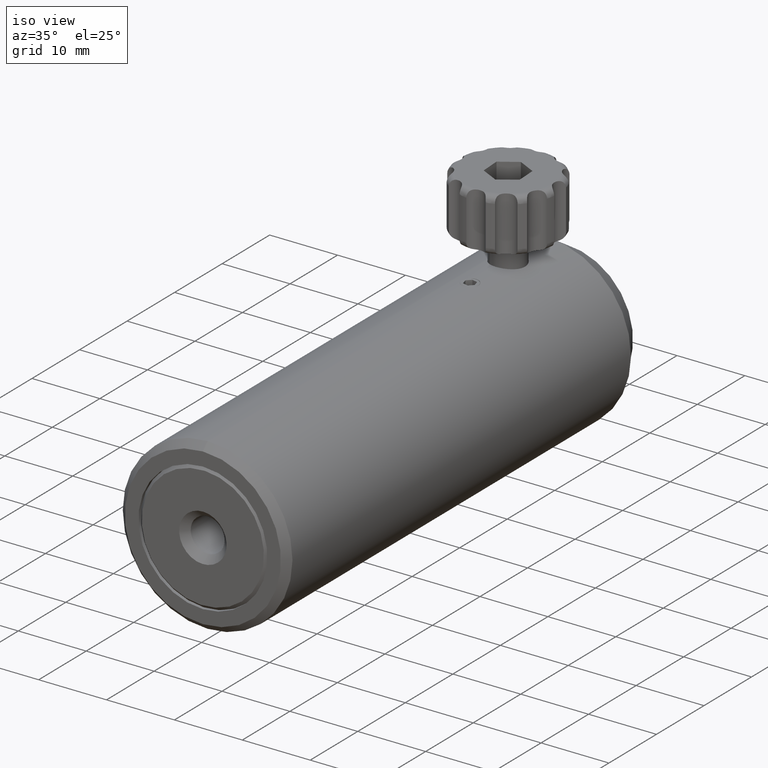
[diagram: clean part render]
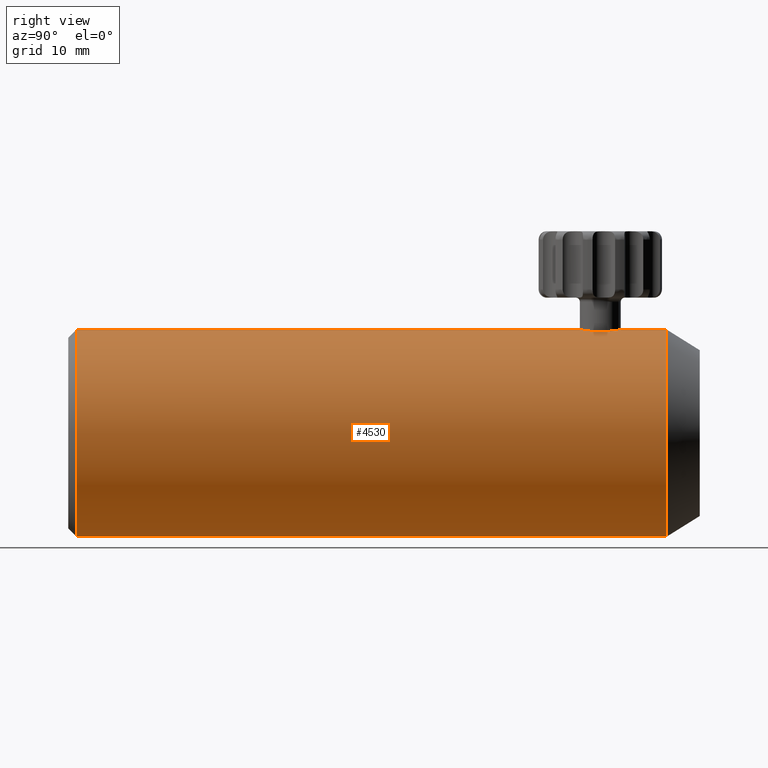
[diagram: tour spotlight — one face highlighted and labeled with its STEP entity id]
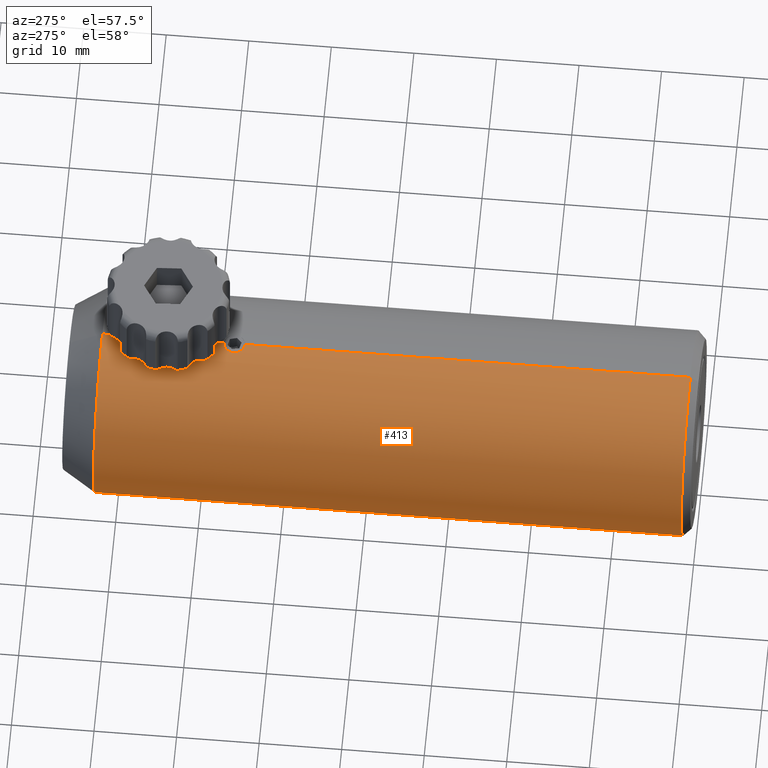
[diagram: tour spotlight — one face highlighted and labeled with its STEP entity id]
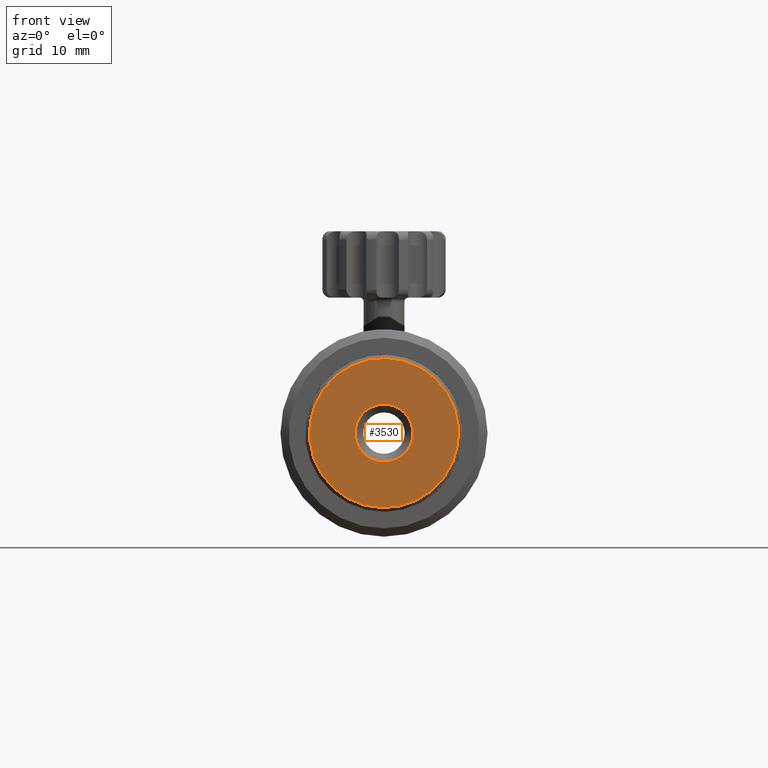
[diagram: tour spotlight — one face highlighted and labeled with its STEP entity id]
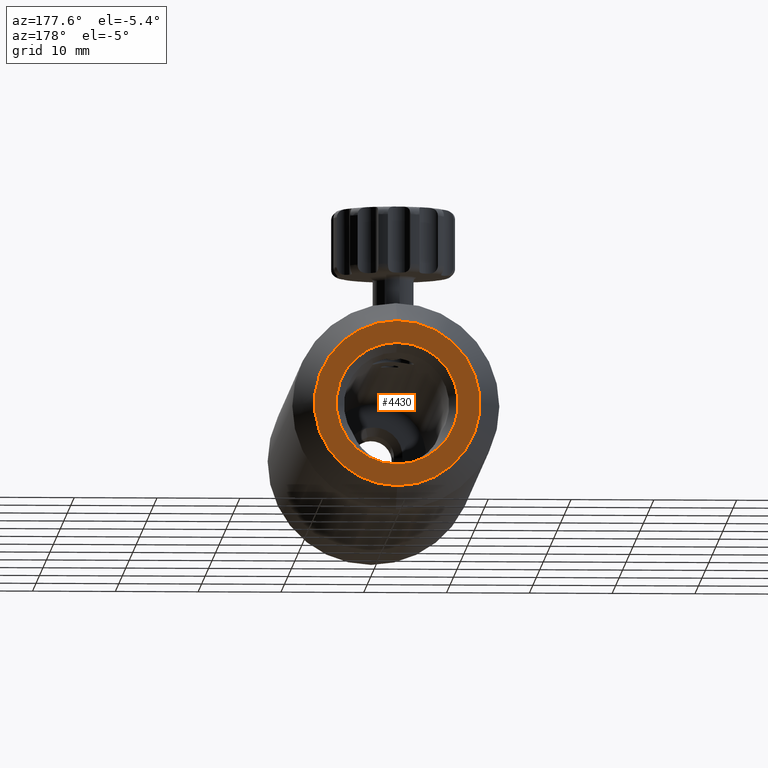
[diagram: tour spotlight — one face highlighted and labeled with its STEP entity id]
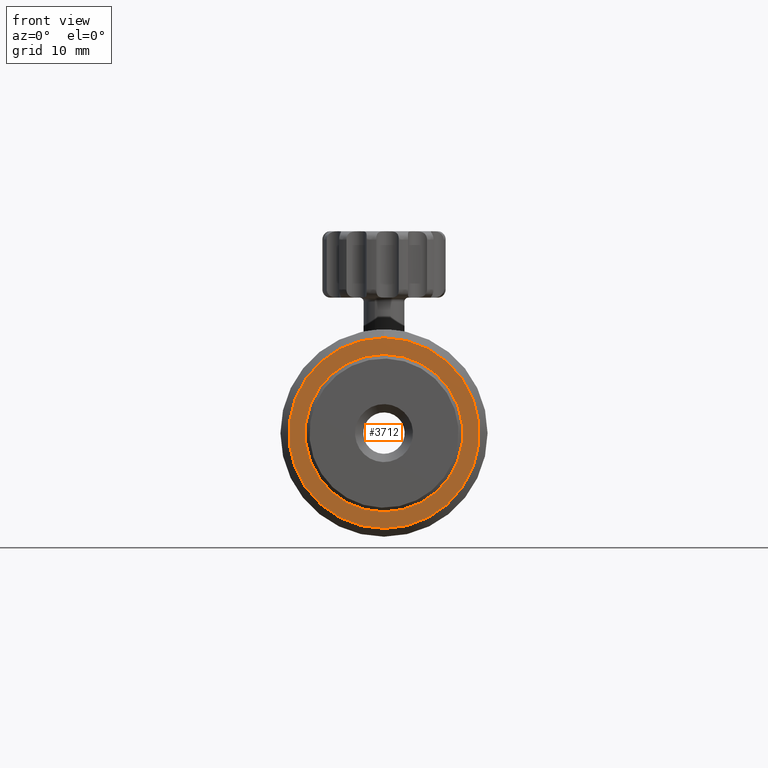
[diagram: tour spotlight — one face highlighted and labeled with its STEP entity id]
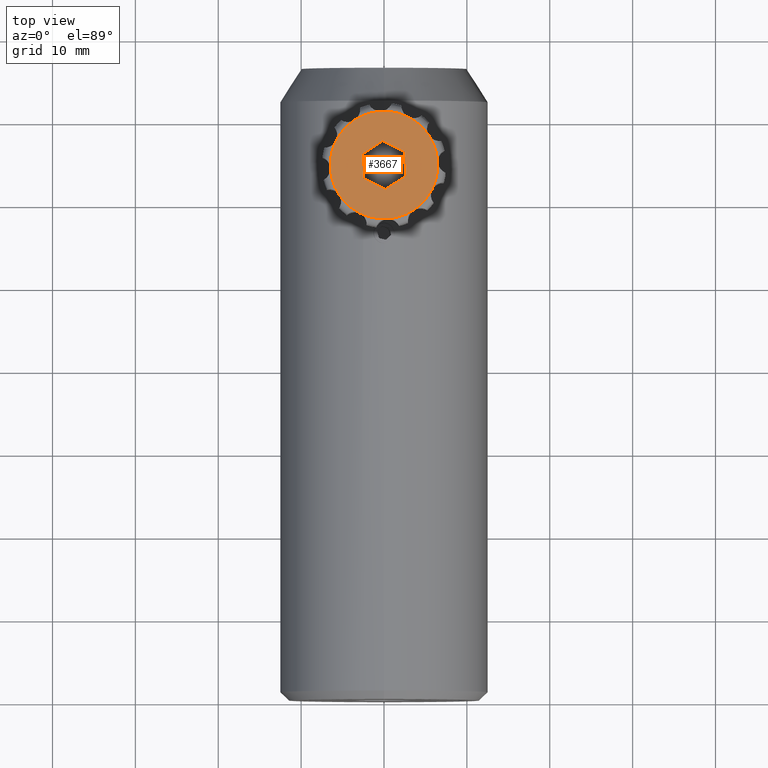
[diagram: tour spotlight — one face highlighted and labeled with its STEP entity id]
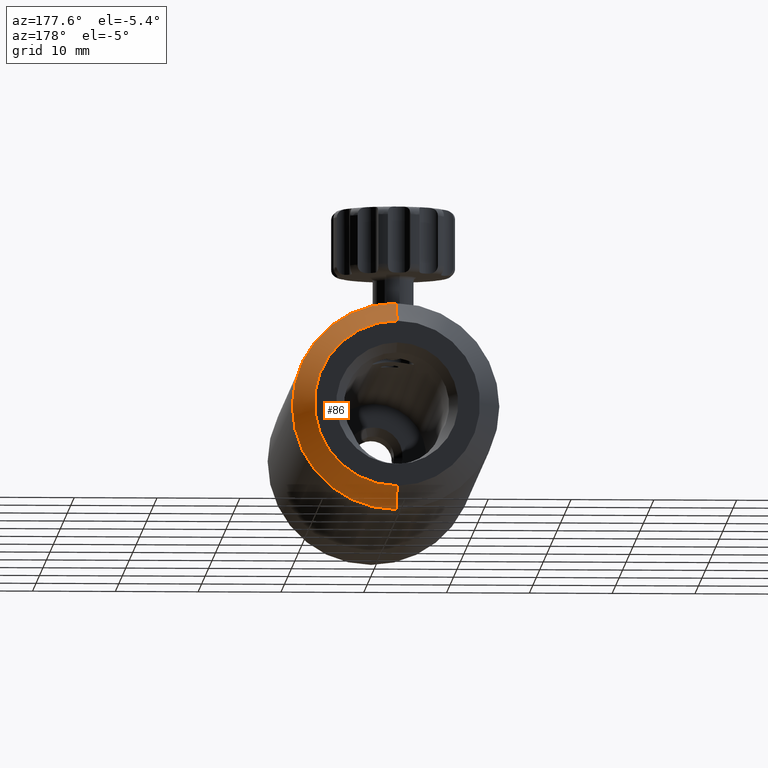
[diagram: tour spotlight — one face highlighted and labeled with its STEP entity id]
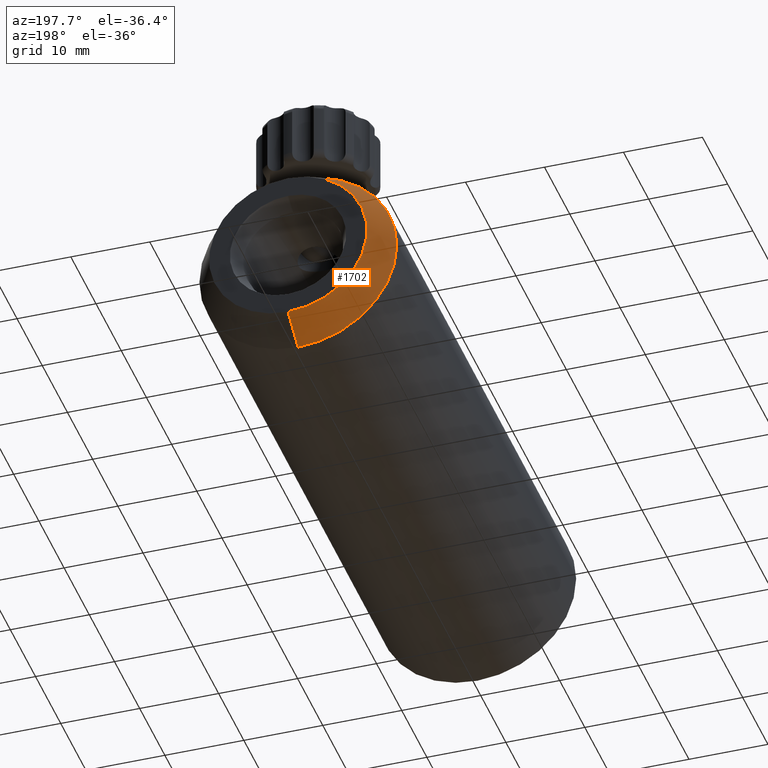
[diagram: tour spotlight — one face highlighted and labeled with its STEP entity id]
A machine part: a face-by-face anatomy tour. The part has 127 B-rep faces; the first image is the clean iso view, then the 8 largest visible faces are spotlighted one at a time (largest first), each with its STEP entity span.

Face 1 — right view, entity #4530. In plain terms, the highlighted cylindrical surface (partial cylindrical patch) has radius 12.5 mm, axis along (0, -1, -0).
Definition (entity closure, byte-faithful):
#132 = EDGE_CURVE ( 'NONE', #3330, #2304, #1838, .T. ) ;
#134 = CARTESIAN_POINT ( 'NONE',  ( 1.249999999999988500, 46.47173567099245200, 12.43734296383275200 ) ) ;
#198 = EDGE_CURVE ( 'NONE', #1697, #2083, #2928, .T. ) ;
#217 = ORIENTED_EDGE ( 'NONE', *, *, #1750, .T. ) ;
#223 = CARTESIAN_POINT ( 'NONE',  ( 1.258464398260915600, 52.28717308081499500, 12.44014819171530200 ) ) ;
#260 = CARTESIAN_POINT ( 'NONE',  ( 2.183201890927252400, 55.73252212889043000, 12.30852602546840700 ) ) ;
#280 = CARTESIAN_POINT ( 'NONE',  ( 1.402081752596720000E-014, -19.86467094839286000, 12.49999999999998600 ) ) ;
#285 = DIRECTION ( 'NONE',  ( 1.502285461903961200E-018, -1.000000000000000000, -4.971860657915503100E-018 ) ) ;
#286 = CARTESIAN_POINT ( 'NONE',  ( 0.9988729955967233800, 45.70275573964728000, 12.46056251293763100 ) ) ;
#294 = CYLINDRICAL_SURFACE ( 'NONE', #529, 12.49999999999998600 ) ;
#311 = EDGE_CURVE ( 'NONE', #3813, #4003, #5235, .T. ) ;
#529 = AXIS2_PLACEMENT_3D ( 'NONE', #3630, #1624, #1677 ) ;
#615 = CARTESIAN_POINT ( 'NONE',  ( 0.8071178231123540300, 56.84349929281919600, 12.47483370305772100 ) ) ;
#634 = CARTESIAN_POINT ( 'NONE',  ( 1.391289874940237300E-014, 51.97173567099245900, 12.50000000000000000 ) ) ;
#674 = CARTESIAN_POINT ( 'NONE',  ( 2.499999999999992900, 54.47173567099245900, 12.24744871391589200 ) ) ;
#682 = CARTESIAN_POINT ( 'NONE',  ( 1.249999999999988500, 46.47173567099245200, 12.43734296383275200 ) ) ;
#697 = CARTESIAN_POINT ( 'NONE',  ( 0.1650922665555185900, 47.72173567099242300, 12.50000000000000200 ) ) ;
#758 = ORIENTED_EDGE ( 'NONE', *, *, #132, .T. ) ;
#907 = VERTEX_POINT ( 'NONE', #1680 ) ;
#931 = ORIENTED_EDGE ( 'NONE', *, *, #311, .F. ) ;
#1020 = EDGE_CURVE ( 'NONE', #4003, #2083, #2653, .T. ) ;
#1035 = CARTESIAN_POINT ( 'NONE',  ( 0.6287757669236195800, 45.37918630444515600, 12.48508365205989900 ) ) ;
#1043 = CARTESIAN_POINT ( 'NONE',  ( 1.252440858067034800, 56.64156167498970300, 12.43785045806486000 ) ) ;
#1045 = ORIENTED_EDGE ( 'NONE', *, *, #1020, .F. ) ;
#1046 = CARTESIAN_POINT ( 'NONE',  ( 2.483695091913815200, 54.14324505290184700, 12.25080883811653500 ) ) ;
#1065 = CARTESIAN_POINT ( 'NONE',  ( 0.6477864283979496400, 56.89186609561596000, 12.48423229729775700 ) ) ;
#1087 = VERTEX_POINT ( 'NONE', #134 ) ;
#1090 = CARTESIAN_POINT ( 'NONE',  ( 0.3278467621247666000, 45.25455056429028400, 12.49660711011464900 ) ) ;
#1104 = CARTESIAN_POINT ( 'NONE',  ( 0.6298802307698245800, 47.56378973652467600, 12.48503836658517100 ) ) ;
#1202 = CARTESIAN_POINT ( 'NONE',  ( 1.091943347343458300, 47.10152339138082300, 12.45237283430295600 ) ) ;
#1207 = LINE ( 'NONE', #3921, #3034 ) ;
#1229 = CARTESIAN_POINT ( 'NONE',  ( -1.249000902703301100E-014, 62.47173567099246600, -12.49999999999998600 ) ) ;
#1422 = CARTESIAN_POINT ( 'NONE',  ( 1.996900623647761300, 56.01053728370504800, 12.34164756483837300 ) ) ;
#1457 = VERTEX_POINT ( 'NONE', #3312 ) ;
#1482 = ORIENTED_EDGE ( 'NONE', *, *, #4374, .T. ) ;
#1497 = CARTESIAN_POINT ( 'NONE',  ( 1.536888399603047100, 52.47328006048712700, 12.40733747206567900 ) ) ;
#1505 = CARTESIAN_POINT ( 'NONE',  ( 0.1632135460536394100, 45.22173567099248000, 12.50000000000000200 ) ) ;
#1624 = DIRECTION ( 'NONE',  ( 1.502285461903961200E-018, -1.000000000000000000, -4.971860657915503100E-018 ) ) ;
#1653 = EDGE_CURVE ( 'NONE', #1457, #3330, #1207, .T. ) ;
#1677 = DIRECTION ( 'NONE',  ( -9.992007221626420700E-016, 0.0000000000000000000, -1.000000000000000000 ) ) ;
#1680 = CARTESIAN_POINT ( 'NONE',  ( 1.391289874940237300E-014, 51.97173567099245900, 12.50000000000000000 ) ) ;
#1697 = VERTEX_POINT ( 'NONE', #2359 ) ;
#1705 = FACE_OUTER_BOUND ( 'NONE', #5075, .T. ) ;
#1736 = CARTESIAN_POINT ( 'NONE',  ( 2.499999999999992900, 54.47173567099245900, 12.24744871391589200 ) ) ;
#1740 = ORIENTED_EDGE ( 'NONE', *, *, #1653, .T. ) ;
#1750 = EDGE_CURVE ( 'NONE', #5050, #1087, #5239, .T. ) ;
#1838 = B_SPLINE_CURVE_WITH_KNOTS ( 'NONE', 3,
 ( #4737, #4677, #2278, #1065, #615, #4277, #1043, #3937, #3875, #1422, #260, #2716, #3125, #3512, #3110, #4348 ),
 .UNSPECIFIED., .F., .F.,
 ( 4, 2, 2, 2, 2, 2, 2, 4 ),
 ( 0.01175406517630188700, 0.01224352881140014300, 0.01273299244649839900, 0.01322245608159665500, 0.01371191971669491100, 0.01469084698689142300, 0.01518031062198968800, 0.01566977425708795300 ),
 .UNSPECIFIED. ) ;
#1870 = CARTESIAN_POINT ( 'NONE',  ( 0.6491495277680466900, 52.05187544510624100, 12.48417924877889000 ) ) ;
#1971 = CARTESIAN_POINT ( 'NONE',  ( 1.249999999999973400, 46.63690916099648100, 12.43734296383275500 ) ) ;
#2030 = VECTOR ( 'NONE', #3368, 1000.000000000000000 ) ;
#2083 = VERTEX_POINT ( 'NONE', #4442 ) ;
#2152 = LINE ( 'NONE', #5057, #2030 ) ;
#2245 = DIRECTION ( 'NONE',  ( -9.992007221626420700E-016, 0.0000000000000000000, -1.000000000000000000 ) ) ;
#2260 = CARTESIAN_POINT ( 'NONE',  ( 0.8072524412605034400, 52.10005797701669600, 12.47481857240661200 ) ) ;
#2266 = AXIS2_PLACEMENT_3D ( 'NONE', #4626, #2570, #4611 ) ;
#2278 = CARTESIAN_POINT ( 'NONE',  ( 0.3275101624964542600, 56.95556248107129000, 12.49673639008083500 ) ) ;
#2304 = VERTEX_POINT ( 'NONE', #1736 ) ;
#2341 = CARTESIAN_POINT ( 'NONE',  ( 1.217402745360329100, 46.14417744980200100, 12.44073584797020400 ) ) ;
#2359 = CARTESIAN_POINT ( 'NONE',  ( 1.392303918214538200E-014, 45.22173567099245900, 12.50000000000000000 ) ) ;
#2387 = B_SPLINE_CURVE_WITH_KNOTS ( 'NONE', 3,
 ( #682, #3482, #2341, #3903, #286, #3520, #1035, #1090, #1505, #5191 ),
 .UNSPECIFIED., .F., .F.,
 ( 4, 2, 2, 2, 4 ),
 ( 4.336808689942017700E-019, 0.0004889271271764371400, 0.0009778542543528738400, 0.001466781381529310600, 0.001955708508705747700 ),
 .UNSPECIFIED. ) ;
#2394 = ORIENTED_EDGE ( 'NONE', *, *, #198, .T. ) ;
#2422 = EDGE_CURVE ( 'NONE', #907, #5050, #2152, .T. ) ;
#2570 = DIRECTION ( 'NONE',  ( 1.502285461903961200E-018, -1.000000000000000000, -4.971860657915503100E-018 ) ) ;
#2573 = DIRECTION ( 'NONE',  ( 1.502285461903961200E-018, -1.000000000000000000, -4.971860657915503100E-018 ) ) ;
#2637 = CARTESIAN_POINT ( 'NONE',  ( 2.245875050611121400, 53.36137925029825600, 12.29675304843887100 ) ) ;
#2653 = CIRCLE ( 'NONE', #2266, 12.49999999999998800 ) ;
#2656 = DIRECTION ( 'NONE',  ( 1.502285461903961200E-018, -1.000000000000000000, -4.971860657915503100E-018 ) ) ;
#2657 = CARTESIAN_POINT ( 'NONE',  ( 2.169010580702397400, 53.21791784556702300, 12.31072157077306400 ) ) ;
#2680 = CARTESIAN_POINT ( 'NONE',  ( 0.3272351690976892400, 47.68921188483227500, 12.49663351724471900 ) ) ;
#2716 = CARTESIAN_POINT ( 'NONE',  ( 2.370741385842926300, 55.28171933051488900, 12.27328933642065300 ) ) ;
#2757 = CARTESIAN_POINT ( 'NONE',  ( 0.7683811875380751600, 47.47104838681049400, 12.47689597629915600 ) ) ;
#2928 = LINE ( 'NONE', #280, #3492 ) ;
#2956 = EDGE_CURVE ( 'NONE', #1087, #1697, #2387, .T. ) ;
#3034 = VECTOR ( 'NONE', #285, 1000.000000000000000 ) ;
#3067 = CARTESIAN_POINT ( 'NONE',  ( 1.882113350589010400, 52.81822061798167300, 12.35804036286394800 ) ) ;
#3110 = CARTESIAN_POINT ( 'NONE',  ( 2.500000000000056800, 54.63727286835195700, 12.24744871391586400 ) ) ;
#3125 = CARTESIAN_POINT ( 'NONE',  ( 2.419224799516218800, 55.12319478966470900, 12.26370387899350700 ) ) ;
#3174 = CARTESIAN_POINT ( 'NONE',  ( 0.9988258077560424600, 47.24074968849701200, 12.46056539080442200 ) ) ;
#3312 = CARTESIAN_POINT ( 'NONE',  ( 1.395060610176128500E-014, 62.47173567099246600, 12.50000000000000200 ) ) ;
#3330 = VERTEX_POINT ( 'NONE', #3840 ) ;
#3368 = DIRECTION ( 'NONE',  ( 1.502285461903961200E-018, -1.000000000000000000, -4.971860657915503100E-018 ) ) ;
#3413 = ORIENTED_EDGE ( 'NONE', *, *, #2422, .T. ) ;
#3429 = EDGE_CURVE ( 'NONE', #3813, #1457, #4249, .T. ) ;
#3444 = ORIENTED_EDGE ( 'NONE', *, *, #2956, .T. ) ;
#3451 = CARTESIAN_POINT ( 'NONE',  ( 1.987480490787157300, 52.94642018320180900, 12.34132868823435600 ) ) ;
#3482 = CARTESIAN_POINT ( 'NONE',  ( 1.249999999999973600, 46.30640534831252400, 12.43734296383275300 ) ) ;
#3492 = VECTOR ( 'NONE', #2656, 1000.000000000000000 ) ;
#3512 = CARTESIAN_POINT ( 'NONE',  ( 2.483718732627297600, 54.80065643818685600, 12.25080498250751200 ) ) ;
#3520 = CARTESIAN_POINT ( 'NONE',  ( 0.7682336835139368400, 45.47228862204058000, 12.47690596292500800 ) ) ;
#3571 = CARTESIAN_POINT ( 'NONE',  ( -1.249000902703301100E-014, -19.86467094839286000, -12.49999999999998600 ) ) ;
#3630 = CARTESIAN_POINT ( 'NONE',  ( 0.0000000000000000000, -19.86467094839286000, 0.0000000000000000000 ) ) ;
#3635 = CARTESIAN_POINT ( 'NONE',  ( 1.249999999999988500, 46.47173567099245200, 12.43734296383275200 ) ) ;
#3813 = VERTEX_POINT ( 'NONE', #1229 ) ;
#3840 = CARTESIAN_POINT ( 'NONE',  ( 1.390536139047335900E-014, 56.97173567099245200, 12.50000000000000000 ) ) ;
#3875 = CARTESIAN_POINT ( 'NONE',  ( 1.652226956681009100, 56.35495809800939100, 12.39086822068849300 ) ) ;
#3877 = CARTESIAN_POINT ( 'NONE',  ( 0.3261209569290075500, 51.98763347026093100, 12.49679045781334700 ) ) ;
#3903 = CARTESIAN_POINT ( 'NONE',  ( 1.091801080163454600, 45.84139113501691300, 12.45238725244021400 ) ) ;
#3921 = CARTESIAN_POINT ( 'NONE',  ( 1.402081752596720000E-014, -19.86467094839286000, 12.49999999999998600 ) ) ;
#3937 = CARTESIAN_POINT ( 'NONE',  ( 1.524477638317715400, 56.45988076651431000, 12.40744534746815100 ) ) ;
#3992 = DIRECTION ( 'NONE',  ( 1.502285461903961200E-018, -1.000000000000000000, -4.971860657915503100E-018 ) ) ;
#4003 = VERTEX_POINT ( 'NONE', #4974 ) ;
#4009 = CARTESIAN_POINT ( 'NONE',  ( 1.391928344987868800E-014, 47.72173567099243700, 12.50000000000000000 ) ) ;
#4018 = CARTESIAN_POINT ( 'NONE',  ( 1.216778702290447900, 46.80101129446313000, 12.44079495321525600 ) ) ;
#4187 = ORIENTED_EDGE ( 'NONE', *, *, #3429, .T. ) ;
#4249 = CIRCLE ( 'NONE', #4469, 12.49999999999998600 ) ;
#4277 = CARTESIAN_POINT ( 'NONE',  ( 1.108981958977201600, 56.71825762122338000, 12.45162937586858700 ) ) ;
#4312 = CARTESIAN_POINT ( 'NONE',  ( 2.419889922803355000, 53.82305997599141300, 12.26357171704825100 ) ) ;
#4348 = CARTESIAN_POINT ( 'NONE',  ( 2.499999999999992900, 54.47173567099245900, 12.24744871391589200 ) ) ;
#4354 = CARTESIAN_POINT ( 'NONE',  ( 1.391928344987868800E-014, 47.72173567099243700, 12.50000000000000000 ) ) ;
#4374 = EDGE_CURVE ( 'NONE', #2304, #907, #4395, .T. ) ;
#4395 = B_SPLINE_CURVE_WITH_KNOTS ( 'NONE', 3,
 ( #674, #4738, #1046, #4312, #5107, #2637, #2657, #3451, #3067, #1497, #223, #2260, #1870, #3877, #5165, #634 ),
 .UNSPECIFIED., .F., .F.,
 ( 4, 2, 2, 2, 2, 2, 2, 4 ),
 ( 1.398578778534940500E-017, 0.0004898651706501192800, 0.0009797303413002244600, 0.001469595511950329500, 0.001959460682600435100, 0.002939191023900659900, 0.003429056194550772400, 0.003918921365200884800 ),
 .UNSPECIFIED. ) ;
#4442 = CARTESIAN_POINT ( 'NONE',  ( 1.249000902703301300E-014, -8.728264329007521000, 12.49999999999998800 ) ) ;
#4469 = AXIS2_PLACEMENT_3D ( 'NONE', #4596, #2573, #2245 ) ;
#4530 = ADVANCED_FACE ( 'NONE', ( #1705 ), #294, .T. ) ;
#4596 = CARTESIAN_POINT ( 'NONE',  ( 0.0000000000000000000, 62.47173567099246600, 0.0000000000000000000 ) ) ;
#4611 = DIRECTION ( 'NONE',  ( -9.992007221626420700E-016, 0.0000000000000000000, -1.000000000000000000 ) ) ;
#4626 = CARTESIAN_POINT ( 'NONE',  ( 0.0000000000000000000, -8.728264329007521000, 0.0000000000000000000 ) ) ;
#4677 = CARTESIAN_POINT ( 'NONE',  ( 0.1649877110226865300, 56.97173567099245900, 12.50000000000000000 ) ) ;
#4737 = CARTESIAN_POINT ( 'NONE',  ( 1.390536139047335900E-014, 56.97173567099245200, 12.50000000000000000 ) ) ;
#4738 = CARTESIAN_POINT ( 'NONE',  ( 2.500000000000057700, 54.30606267382041400, 12.24744871391586500 ) ) ;
#4974 = CARTESIAN_POINT ( 'NONE',  ( -1.095920052809882300E-014, -8.728264329007521000, -12.49999999999998800 ) ) ;
#4978 = VECTOR ( 'NONE', #3992, 1000.000000000000000 ) ;
#5050 = VERTEX_POINT ( 'NONE', #4009 ) ;
#5057 = CARTESIAN_POINT ( 'NONE',  ( 1.402081752596720000E-014, -19.86467094839286000, 12.49999999999998600 ) ) ;
#5075 = EDGE_LOOP ( 'NONE', ( #4187, #1740, #758, #1482, #3413, #217, #3444, #2394, #1045, #931 ) ) ;
#5107 = CARTESIAN_POINT ( 'NONE',  ( 2.371584932172055000, 53.66400364028620400, 12.27312817446076700 ) ) ;
#5165 = CARTESIAN_POINT ( 'NONE',  ( 0.1635696530454423300, 51.97173567099247300, 12.50000000000000200 ) ) ;
#5191 = CARTESIAN_POINT ( 'NONE',  ( 1.392303918214538200E-014, 45.22173567099245900, 12.50000000000000000 ) ) ;
#5235 = LINE ( 'NONE', #3571, #4978 ) ;
#5239 = B_SPLINE_CURVE_WITH_KNOTS ( 'NONE', 3,
 ( #4354, #697, #2680, #1104, #2757, #3174, #1202, #4018, #1971, #3635 ),
 .UNSPECIFIED., .F., .F.,
 ( 4, 2, 2, 2, 4 ),
 ( 0.005866252154378851500, 0.006354715484301207100, 0.006843178814223563700, 0.007331642144145919400, 0.007820105474068275000 ),
 .UNSPECIFIED. ) ;

Face 2 — auxiliary view, entity #413. In plain terms, the highlighted cylindrical surface (partial cylindrical patch) has radius 12.5 mm, axis along (0, -1, -0).
Definition (entity closure, byte-faithful):
#3 = CARTESIAN_POINT ( 'NONE',  ( -2.372035508039863400, 53.66539139077355000, 12.27303990132221600 ) ) ;
#45 = CARTESIAN_POINT ( 'NONE',  ( -1.241824376356804400, 46.30727382039604800, 12.43817230463414500 ) ) ;
#60 = FACE_OUTER_BOUND ( 'NONE', #4943, .T. ) ;
#135 = CARTESIAN_POINT ( 'NONE',  ( -1.524830080504566000, 56.45955051660499200, 12.40739484397973900 ) ) ;
#198 = EDGE_CURVE ( 'NONE', #1697, #2083, #2928, .T. ) ;
#280 = CARTESIAN_POINT ( 'NONE',  ( 1.402081752596720000E-014, -19.86467094839286000, 12.49999999999998600 ) ) ;
#285 = DIRECTION ( 'NONE',  ( 1.502285461903961200E-018, -1.000000000000000000, -4.971860657915503100E-018 ) ) ;
#311 = EDGE_CURVE ( 'NONE', #3813, #4003, #5235, .T. ) ;
#401 = CARTESIAN_POINT ( 'NONE',  ( -2.419432629682962700, 53.82121399299207100, 12.26366247544742000 ) ) ;
#412 = EDGE_CURVE ( 'NONE', #1697, #1378, #4128, .T. ) ;
#413 = ADVANCED_FACE ( 'NONE', ( #60 ), #4976, .T. ) ;
#421 = CARTESIAN_POINT ( 'NONE',  ( -1.000601681212972800, 45.70457744673850400, 12.46043665434005600 ) ) ;
#458 = CARTESIAN_POINT ( 'NONE',  ( -0.6302678785731818900, 47.56357545669921200, 12.48501927792682200 ) ) ;
#548 = CARTESIAN_POINT ( 'NONE',  ( -1.254095207338914700, 56.64055098027509400, 12.43767658366128100 ) ) ;
#720 = CARTESIAN_POINT ( 'NONE',  ( -2.499999999999993300, 54.47173567099245900, 12.24744871391589200 ) ) ;
#769 = ORIENTED_EDGE ( 'NONE', *, *, #198, .F. ) ;
#785 = CARTESIAN_POINT ( 'NONE',  ( -0.7672186447331339500, 45.47118031687126900, 12.47698124116732300 ) ) ;
#798 = CARTESIAN_POINT ( 'NONE',  ( -1.884435791792591800, 52.82070991982012500, 12.35769642192709100 ) ) ;
#846 = CARTESIAN_POINT ( 'NONE',  ( -0.3295900698624696900, 51.98816225474223500, 12.49668548760995500 ) ) ;
#871 = CARTESIAN_POINT ( 'NONE',  ( -0.3275449644076426900, 47.68913700691437200, 12.49662587522155000 ) ) ;
#907 = VERTEX_POINT ( 'NONE', #1680 ) ;
#927 = CARTESIAN_POINT ( 'NONE',  ( -2.499999999999993300, 54.47173567099245900, 12.24744871391589200 ) ) ;
#962 = CARTESIAN_POINT ( 'NONE',  ( -1.110679265153798900, 56.71748504203925700, 12.45148803428745400 ) ) ;
#994 = CARTESIAN_POINT ( 'NONE',  ( -2.499999999999993300, 54.79852954422745600, 12.24744871391589000 ) ) ;
#1181 = ORIENTED_EDGE ( 'NONE', *, *, #412, .T. ) ;
#1207 = LINE ( 'NONE', #3921, #3034 ) ;
#1209 = CARTESIAN_POINT ( 'NONE',  ( -2.168363267604377100, 53.21688309709715300, 12.31083309937526900 ) ) ;
#1229 = CARTESIAN_POINT ( 'NONE',  ( -1.249000902703301100E-014, 62.47173567099246600, -12.49999999999998600 ) ) ;
#1378 = VERTEX_POINT ( 'NONE', #4182 ) ;
#1457 = VERTEX_POINT ( 'NONE', #3312 ) ;
#1590 = CARTESIAN_POINT ( 'NONE',  ( -0.3301821175306371400, 56.97173567099247300, 12.50000000000000700 ) ) ;
#1653 = EDGE_CURVE ( 'NONE', #1457, #3330, #1207, .T. ) ;
#1680 = CARTESIAN_POINT ( 'NONE',  ( 1.391289874940237300E-014, 51.97173567099245900, 12.50000000000000000 ) ) ;
#1697 = VERTEX_POINT ( 'NONE', #2359 ) ;
#1698 = CARTESIAN_POINT ( 'NONE',  ( -0.1652517436713073800, 47.72173567099245200, 12.50000000000000000 ) ) ;
#1762 = CARTESIAN_POINT ( 'NONE',  ( -1.092513960115167900, 47.10058217864893500, 12.45232237639812200 ) ) ;
#1769 = CARTESIAN_POINT ( 'NONE',  ( -2.434145533792756700, 55.12834410860047300, 12.26136488205233600 ) ) ;
#1796 = AXIS2_PLACEMENT_3D ( 'NONE', #2675, #2693, #3112 ) ;
#1866 = CARTESIAN_POINT ( 'NONE',  ( 1.391928344987868800E-014, 47.72173567099243700, 12.50000000000000000 ) ) ;
#1868 = B_SPLINE_CURVE_WITH_KNOTS ( 'NONE', 3,
 ( #927, #994, #1769, #4263, #4194, #2177, #5030, #2572, #135, #548, #962, #4226, #1590, #3533 ),
 .UNSPECIFIED., .F., .F.,
 ( 4, 2, 2, 2, 2, 2, 4 ),
 ( 0.007835903308627210600, 0.008815443775545880200, 0.009305214009005214100, 0.009794984242464548100, 0.01028475447592388400, 0.01077452470938321800, 0.01175406517630188700 ),
 .UNSPECIFIED. ) ;
#2029 = CARTESIAN_POINT ( 'NONE',  ( -1.987493849457906200, 52.94650701899480100, 12.34132403996170200 ) ) ;
#2030 = VECTOR ( 'NONE', #3368, 1000.000000000000000 ) ;
#2063 = CARTESIAN_POINT ( 'NONE',  ( -1.109571981282649700, 52.22545570096593100, 12.45158446864237900 ) ) ;
#2065 = DIRECTION ( 'NONE',  ( 1.502285461903961200E-018, -1.000000000000000000, -4.971860657915503100E-018 ) ) ;
#2070 = ORIENTED_EDGE ( 'NONE', *, *, #2584, .T. ) ;
#2083 = VERTEX_POINT ( 'NONE', #4442 ) ;
#2121 = ORIENTED_EDGE ( 'NONE', *, *, #1653, .F. ) ;
#2140 = ORIENTED_EDGE ( 'NONE', *, *, #4415, .T. ) ;
#2152 = LINE ( 'NONE', #5057, #2030 ) ;
#2167 = B_SPLINE_CURVE_WITH_KNOTS ( 'NONE', 3,
 ( #4091, #3226, #846, #4878, #4076, #2063, #2821, #4521, #2411, #798, #2029, #1209, #2428, #3, #401, #2482, #2893, #2860 ),
 .UNSPECIFIED., .F., .F.,
 ( 4, 2, 2, 2, 2, 2, 2, 2, 4 ),
 ( 0.003918921365200884800, 0.004408544108129175200, 0.004898166851057466500, 0.005387789593985756900, 0.005877412336914047300, 0.006367035079842338500, 0.006856657822770628900, 0.007346280565698920200, 0.007835903308627210600 ),
 .UNSPECIFIED. ) ;
#2177 = CARTESIAN_POINT ( 'NONE',  ( -1.986777462949911800, 55.99801110676638400, 12.34144394331504900 ) ) ;
#2280 = DIRECTION ( 'NONE',  ( 1.502285461903961200E-018, -1.000000000000000000, -4.971860657915503100E-018 ) ) ;
#2359 = CARTESIAN_POINT ( 'NONE',  ( 1.392303918214538200E-014, 45.22173567099245900, 12.50000000000000000 ) ) ;
#2411 = CARTESIAN_POINT ( 'NONE',  ( -1.652196633411149500, 52.58832637692808700, 12.39088396340001100 ) ) ;
#2422 = EDGE_CURVE ( 'NONE', #907, #5050, #2152, .T. ) ;
#2428 = CARTESIAN_POINT ( 'NONE',  ( -2.246779625755798800, 53.36325704560886200, 12.29658660702789200 ) ) ;
#2462 = ORIENTED_EDGE ( 'NONE', *, *, #3998, .T. ) ;
#2482 = CARTESIAN_POINT ( 'NONE',  ( -2.483630595049789200, 54.14247624370801000, 12.25082244702797100 ) ) ;
#2572 = CARTESIAN_POINT ( 'NONE',  ( -1.653171479067260300, 56.35417863874644000, 12.39074532005257700 ) ) ;
#2584 = EDGE_CURVE ( 'NONE', #907, #4233, #2167, .T. ) ;
#2615 = ORIENTED_EDGE ( 'NONE', *, *, #311, .T. ) ;
#2656 = DIRECTION ( 'NONE',  ( 1.502285461903961200E-018, -1.000000000000000000, -4.971860657915503100E-018 ) ) ;
#2675 = CARTESIAN_POINT ( 'NONE',  ( 0.0000000000000000000, 62.47173567099246600, 0.0000000000000000000 ) ) ;
#2677 = DIRECTION ( 'NONE',  ( -9.992007221626420700E-016, 0.0000000000000000000, -1.000000000000000000 ) ) ;
#2693 = DIRECTION ( 'NONE',  ( 1.502285461903961200E-018, -1.000000000000000000, -4.971860657915503100E-018 ) ) ;
#2821 = CARTESIAN_POINT ( 'NONE',  ( -1.255244118928147400, 52.30360281995128000, 12.43755810033949800 ) ) ;
#2860 = CARTESIAN_POINT ( 'NONE',  ( -2.499999999999993300, 54.47173567099245900, 12.24744871391589200 ) ) ;
#2893 = CARTESIAN_POINT ( 'NONE',  ( -2.499999999999993800, 54.30838794010309600, 12.24744871391589200 ) ) ;
#2928 = LINE ( 'NONE', #280, #3492 ) ;
#2962 = CARTESIAN_POINT ( 'NONE',  ( -1.249999999999988200, 46.63498953854014000, 12.43734296383275200 ) ) ;
#3034 = VECTOR ( 'NONE', #285, 1000.000000000000000 ) ;
#3112 = DIRECTION ( 'NONE',  ( -9.992007221626420700E-016, 0.0000000000000000000, -1.000000000000000000 ) ) ;
#3226 = CARTESIAN_POINT ( 'NONE',  ( -0.1634887046115958400, 51.97173567099246600, 12.50000000000000000 ) ) ;
#3228 = CARTESIAN_POINT ( 'NONE',  ( -1.209850657824305800, 46.14702523417578600, 12.44132305855144500 ) ) ;
#3245 = CARTESIAN_POINT ( 'NONE',  ( -0.3269799047647056200, 45.25418722561195000, 12.49664064546604100 ) ) ;
#3261 = CARTESIAN_POINT ( 'NONE',  ( -1.249999999999988500, 46.47173567099245200, 12.43734296383275200 ) ) ;
#3276 = CARTESIAN_POINT ( 'NONE',  ( -0.1631379708245957500, 45.22173567099245900, 12.50000000000000000 ) ) ;
#3312 = CARTESIAN_POINT ( 'NONE',  ( 1.395060610176128500E-014, 62.47173567099246600, 12.50000000000000200 ) ) ;
#3330 = VERTEX_POINT ( 'NONE', #3840 ) ;
#3352 = ORIENTED_EDGE ( 'NONE', *, *, #5288, .T. ) ;
#3367 = CARTESIAN_POINT ( 'NONE',  ( -1.217187377345325400, 46.79959169376696300, 12.44075456743775200 ) ) ;
#3368 = DIRECTION ( 'NONE',  ( 1.502285461903961200E-018, -1.000000000000000000, -4.971860657915503100E-018 ) ) ;
#3492 = VECTOR ( 'NONE', #2656, 1000.000000000000000 ) ;
#3533 = CARTESIAN_POINT ( 'NONE',  ( 1.390536139047335900E-014, 56.97173567099245200, 12.50000000000000000 ) ) ;
#3567 = AXIS2_PLACEMENT_3D ( 'NONE', #4314, #2280, #2677 ) ;
#3571 = CARTESIAN_POINT ( 'NONE',  ( -1.249000902703301100E-014, -19.86467094839286000, -12.49999999999998600 ) ) ;
#3615 = EDGE_CURVE ( 'NONE', #2083, #4003, #4506, .T. ) ;
#3629 = CARTESIAN_POINT ( 'NONE',  ( 0.0000000000000000000, -19.86467094839286000, 0.0000000000000000000 ) ) ;
#3707 = ORIENTED_EDGE ( 'NONE', *, *, #3615, .F. ) ;
#3813 = VERTEX_POINT ( 'NONE', #1229 ) ;
#3840 = CARTESIAN_POINT ( 'NONE',  ( 1.390536139047335900E-014, 56.97173567099245200, 12.50000000000000000 ) ) ;
#3921 = CARTESIAN_POINT ( 'NONE',  ( 1.402081752596720000E-014, -19.86467094839286000, 12.49999999999998600 ) ) ;
#3925 = B_SPLINE_CURVE_WITH_KNOTS ( 'NONE', 3,
 ( #4186, #2962, #3367, #1762, #4608, #5025, #458, #871, #1698, #1866 ),
 .UNSPECIFIED., .F., .F.,
 ( 4, 2, 2, 2, 4 ),
 ( 0.003910511436214298400, 0.004399446615755436700, 0.004888381795296574900, 0.005377316974837713200, 0.005866252154378851500 ),
 .UNSPECIFIED. ) ;
#3992 = DIRECTION ( 'NONE',  ( 1.502285461903961200E-018, -1.000000000000000000, -4.971860657915503100E-018 ) ) ;
#3998 = EDGE_CURVE ( 'NONE', #1378, #5050, #3925, .T. ) ;
#4003 = VERTEX_POINT ( 'NONE', #4974 ) ;
#4009 = CARTESIAN_POINT ( 'NONE',  ( 1.391928344987868800E-014, 47.72173567099243700, 12.50000000000000000 ) ) ;
#4058 = CARTESIAN_POINT ( 'NONE',  ( -1.092173380130774300, 45.84205168826303400, 12.45235406355339000 ) ) ;
#4076 = CARTESIAN_POINT ( 'NONE',  ( -0.8064545680447506900, 52.09969968579544300, 12.47488423958568600 ) ) ;
#4091 = CARTESIAN_POINT ( 'NONE',  ( 1.391289874940237300E-014, 51.97173567099245900, 12.50000000000000000 ) ) ;
#4128 = B_SPLINE_CURVE_WITH_KNOTS ( 'NONE', 3,
 ( #4473, #3276, #3245, #4935, #785, #421, #4058, #5285, #3228, #45, #4490, #3261 ),
 .UNSPECIFIED., .F., .F.,
 ( 4, 2, 2, 2, 2, 4 ),
 ( 0.001955708508705747700, 0.002444409240582885500, 0.002933109972460023200, 0.003421810704337160600, 0.003666161070275729900, 0.003910511436214298400 ),
 .UNSPECIFIED. ) ;
#4182 = CARTESIAN_POINT ( 'NONE',  ( -1.249999999999988500, 46.47173567099245200, 12.43734296383275200 ) ) ;
#4186 = CARTESIAN_POINT ( 'NONE',  ( -1.249999999999988500, 46.47173567099245200, 12.43734296383275200 ) ) ;
#4194 = CARTESIAN_POINT ( 'NONE',  ( -2.168852038574405700, 55.72588168637671700, 12.31075156633603200 ) ) ;
#4226 = CARTESIAN_POINT ( 'NONE',  ( -0.6554458775917698700, 56.90656325666390100, 12.48651438527712400 ) ) ;
#4233 = VERTEX_POINT ( 'NONE', #720 ) ;
#4263 = CARTESIAN_POINT ( 'NONE',  ( -2.246900047481561900, 55.57988275357338600, 12.29656348291077400 ) ) ;
#4314 = CARTESIAN_POINT ( 'NONE',  ( 0.0000000000000000000, -8.728264329007521000, 0.0000000000000000000 ) ) ;
#4415 = EDGE_CURVE ( 'NONE', #1457, #3813, #4563, .T. ) ;
#4442 = CARTESIAN_POINT ( 'NONE',  ( 1.249000902703301300E-014, -8.728264329007521000, 12.49999999999998800 ) ) ;
#4473 = CARTESIAN_POINT ( 'NONE',  ( 1.392303918214538200E-014, 45.22173567099245900, 12.50000000000000000 ) ) ;
#4490 = CARTESIAN_POINT ( 'NONE',  ( -1.249999999999988700, 46.39014787787514400, 12.43734296383275300 ) ) ;
#4506 = CIRCLE ( 'NONE', #3567, 12.49999999999998800 ) ;
#4521 = CARTESIAN_POINT ( 'NONE',  ( -1.525507290797824900, 52.48445980599777300, 12.40730900732092900 ) ) ;
#4524 = DIRECTION ( 'NONE',  ( -9.992007221626420700E-016, 0.0000000000000000000, -1.000000000000000000 ) ) ;
#4551 = AXIS2_PLACEMENT_3D ( 'NONE', #3629, #2065, #4524 ) ;
#4563 = CIRCLE ( 'NONE', #1796, 12.49999999999998600 ) ;
#4608 = CARTESIAN_POINT ( 'NONE',  ( -0.9994039836972220500, 47.24002708515964600, 12.46051926013247500 ) ) ;
#4771 = ORIENTED_EDGE ( 'NONE', *, *, #2422, .F. ) ;
#4878 = CARTESIAN_POINT ( 'NONE',  ( -0.6504525062259012300, 52.05229811957657700, 12.48409745746714000 ) ) ;
#4935 = CARTESIAN_POINT ( 'NONE',  ( -0.6296988006172292700, 45.37957291047109000, 12.48504796548795800 ) ) ;
#4943 = EDGE_LOOP ( 'NONE', ( #2121, #2140, #2615, #3707, #769, #1181, #2462, #4771, #2070, #3352 ) ) ;
#4974 = CARTESIAN_POINT ( 'NONE',  ( -1.095920052809882300E-014, -8.728264329007521000, -12.49999999999998800 ) ) ;
#4976 = CYLINDRICAL_SURFACE ( 'NONE', #4551, 12.49999999999998600 ) ;
#4978 = VECTOR ( 'NONE', #3992, 1000.000000000000000 ) ;
#5025 = CARTESIAN_POINT ( 'NONE',  ( -0.7689108548568141000, 47.47066315434459900, 12.47686357431408100 ) ) ;
#5030 = CARTESIAN_POINT ( 'NONE',  ( -1.883600863220716200, 56.12358773886111200, 12.35781507037875900 ) ) ;
#5050 = VERTEX_POINT ( 'NONE', #4009 ) ;
#5057 = CARTESIAN_POINT ( 'NONE',  ( 1.402081752596720000E-014, -19.86467094839286000, 12.49999999999998600 ) ) ;
#5235 = LINE ( 'NONE', #3571, #4978 ) ;
#5285 = CARTESIAN_POINT ( 'NONE',  ( -1.186214849594659600, 46.06911241881471900, 12.44362830667532400 ) ) ;
#5288 = EDGE_CURVE ( 'NONE', #4233, #3330, #1868, .T. ) ;

Face 3 — front view, entity #3530. In plain terms, the highlighted planar face has unit normal (-0, 1, 0).
Definition (entity closure, byte-faithful):
#17 = CARTESIAN_POINT ( 'NONE',  ( -2.450934703323369900, -9.728264329007522800, -8.659845211090381400 ) ) ;
#75 = CARTESIAN_POINT ( 'NONE',  ( -1.257674520083185100E-014, -9.728264329007522800, 2.532554530815343400E-015 ) ) ;
#169 = ORIENTED_EDGE ( 'NONE', *, *, #576, .T. ) ;
#341 = DIRECTION ( 'NONE',  ( -7.743483043472672600E-018, 1.000000000000000000, 4.127411765784181600E-018 ) ) ;
#576 = EDGE_CURVE ( 'NONE', #1594, #4827, #3753, .T. ) ;
#617 = CIRCLE ( 'NONE', #1419, 3.499999999999993300 ) ;
#821 = CARTESIAN_POINT ( 'NONE',  ( 0.9531412735146267400, -9.728264329007522800, 3.367717582090704800 ) ) ;
#1125 = FACE_OUTER_BOUND ( 'NONE', #3068, .T. ) ;
#1197 = DIRECTION ( 'NONE',  ( 0.2723260781470401800, 0.0000000000000000000, 0.9622050234544881100 ) ) ;
#1317 = VERTEX_POINT ( 'NONE', #4475 ) ;
#1347 = DIRECTION ( 'NONE',  ( 7.743483043472672600E-018, -1.000000000000000000, -4.127411765784181600E-018 ) ) ;
#1419 = AXIS2_PLACEMENT_3D ( 'NONE', #4811, #341, #3183 ) ;
#1483 = DIRECTION ( 'NONE',  ( 7.743483043472672600E-018, -1.000000000000000000, -4.127411765784181600E-018 ) ) ;
#1484 = ORIENTED_EDGE ( 'NONE', *, *, #2723, .T. ) ;
#1594 = VERTEX_POINT ( 'NONE', #821 ) ;
#1756 = DIRECTION ( 'NONE',  ( 0.2723260781470401800, 0.0000000000000000000, 0.9622050234544881100 ) ) ;
#1917 = EDGE_CURVE ( 'NONE', #4827, #1594, #617, .T. ) ;
#2203 = AXIS2_PLACEMENT_3D ( 'NONE', #4280, #3515, #4680 ) ;
#2532 = DIRECTION ( 'NONE',  ( 0.2723260781470402400, 0.0000000000000000000, 0.9622050234544881100 ) ) ;
#2642 = CIRCLE ( 'NONE', #3120, 8.999999999999987600 ) ;
#2723 = EDGE_CURVE ( 'NONE', #1317, #3224, #2642, .T. ) ;
#3068 = EDGE_LOOP ( 'NONE', ( #1484, #5062 ) ) ;
#3120 = AXIS2_PLACEMENT_3D ( 'NONE', #75, #1347, #1756 ) ;
#3183 = DIRECTION ( 'NONE',  ( 0.2723260781470402400, 0.0000000000000000000, 0.9622050234544881100 ) ) ;
#3224 = VERTEX_POINT ( 'NONE', #17 ) ;
#3325 = DIRECTION ( 'NONE',  ( -7.743483043472672600E-018, 1.000000000000000000, 4.127411765784181600E-018 ) ) ;
#3346 = AXIS2_PLACEMENT_3D ( 'NONE', #5020, #3325, #2532 ) ;
#3515 = DIRECTION ( 'NONE',  ( -8.593205462881816700E-018, 1.000000000000000000, 1.125102232813494700E-018 ) ) ;
#3530 = ADVANCED_FACE ( 'NONE', ( #5071, #1125 ), #4759, .F. ) ;
#3703 = EDGE_LOOP ( 'NONE', ( #4111, #169 ) ) ;
#3753 = CIRCLE ( 'NONE', #3346, 3.499999999999993300 ) ;
#4111 = ORIENTED_EDGE ( 'NONE', *, *, #1917, .T. ) ;
#4158 = AXIS2_PLACEMENT_3D ( 'NONE', #4214, #1483, #1197 ) ;
#4214 = CARTESIAN_POINT ( 'NONE',  ( -1.257674520083185100E-014, -9.728264329007522800, 2.532554530815343400E-015 ) ) ;
#4280 = CARTESIAN_POINT ( 'NONE',  ( -1.257674520083185100E-014, -9.728264329007522800, 2.532554530815343400E-015 ) ) ;
#4302 = EDGE_CURVE ( 'NONE', #3224, #1317, #4686, .T. ) ;
#4475 = CARTESIAN_POINT ( 'NONE',  ( 2.450934703323346000, -9.728264329007522800, 8.659845211090385000 ) ) ;
#4680 = DIRECTION ( 'NONE',  ( 0.2723260781470402400, 1.257574922105320800E-018, 0.9622050234544882200 ) ) ;
#4686 = CIRCLE ( 'NONE', #4158, 8.999999999999987600 ) ;
#4759 = PLANE ( 'NONE',  #2203 ) ;
#4811 = CARTESIAN_POINT ( 'NONE',  ( -1.257674520083185100E-014, -9.728264329007522800, 2.532554530815343400E-015 ) ) ;
#4827 = VERTEX_POINT ( 'NONE', #5088 ) ;
#5020 = CARTESIAN_POINT ( 'NONE',  ( -1.257674520083185100E-014, -9.728264329007522800, 2.532554530815343400E-015 ) ) ;
#5062 = ORIENTED_EDGE ( 'NONE', *, *, #4302, .T. ) ;
#5071 = FACE_BOUND ( 'NONE', #3703, .T. ) ;
#5088 = CARTESIAN_POINT ( 'NONE',  ( -0.9531412735146515000, -9.728264329007522800, -3.367717582090699500 ) ) ;

Face 4 — auxiliary view, entity #4430. In plain terms, the highlighted planar face has unit normal (0, -1, 0).
Definition (entity closure, byte-faithful):
#16 = EDGE_LOOP ( 'NONE', ( #4858, #3427 ) ) ;
#114 = CARTESIAN_POINT ( 'NONE',  ( -6.463717091226673800E-015, 66.47173567099247300, -7.369050898988852800 ) ) ;
#162 = DIRECTION ( 'NONE',  ( 1.502285461903961200E-018, -1.000000000000000000, -4.971860657915503100E-018 ) ) ;
#196 = DIRECTION ( 'NONE',  ( -9.992007221626418700E-016, 0.0000000000000000000, -1.000000000000000000 ) ) ;
#511 = DIRECTION ( 'NONE',  ( 1.502285461903961200E-018, -1.000000000000000000, -4.971860657915503100E-018 ) ) ;
#974 = AXIS2_PLACEMENT_3D ( 'NONE', #1844, #162, #196 ) ;
#983 = DIRECTION ( 'NONE',  ( 1.502285461903961200E-018, -1.000000000000000000, -4.971860657915503100E-018 ) ) ;
#1013 = DIRECTION ( 'NONE',  ( 1.502285461903971000E-018, -1.000000000000000000, 4.971860657915517000E-018 ) ) ;
#1044 = AXIS2_PLACEMENT_3D ( 'NONE', #3434, #1013, #1552 ) ;
#1060 = CIRCLE ( 'NONE', #4981, 10.00052259236270500 ) ;
#1185 = AXIS2_PLACEMENT_3D ( 'NONE', #2918, #4208, #2154 ) ;
#1271 = VERTEX_POINT ( 'NONE', #3140 ) ;
#1552 = DIRECTION ( 'NONE',  ( -9.992007221626420700E-016, -4.971860657915518500E-018, -1.000000000000000000 ) ) ;
#1654 = ORIENTED_EDGE ( 'NONE', *, *, #4670, .T. ) ;
#1844 = CARTESIAN_POINT ( 'NONE',  ( 0.0000000000000000000, 66.47173567099247300, 0.0000000000000000000 ) ) ;
#2154 = DIRECTION ( 'NONE',  ( -9.992007221626418700E-016, 0.0000000000000000000, -1.000000000000000000 ) ) ;
#2575 = EDGE_LOOP ( 'NONE', ( #4997, #1654 ) ) ;
#2636 = FACE_BOUND ( 'NONE', #2575, .T. ) ;
#2702 = CIRCLE ( 'NONE', #4841, 10.00052259236270500 ) ;
#2918 = CARTESIAN_POINT ( 'NONE',  ( 0.0000000000000000000, 66.47173567099247300, 0.0000000000000000000 ) ) ;
#2948 = CARTESIAN_POINT ( 'NONE',  ( 0.0000000000000000000, 66.47173567099247300, 0.0000000000000000000 ) ) ;
#3021 = CIRCLE ( 'NONE', #974, 7.369050898988852800 ) ;
#3057 = CARTESIAN_POINT ( 'NONE',  ( 0.0000000000000000000, 66.47173567099247300, 0.0000000000000000000 ) ) ;
#3140 = CARTESIAN_POINT ( 'NONE',  ( 1.262203343118063000E-014, 66.47173567099247300, 10.00052259236271500 ) ) ;
#3427 = ORIENTED_EDGE ( 'NONE', *, *, #3887, .F. ) ;
#3434 = CARTESIAN_POINT ( 'NONE',  ( -7.369050898988982500, 66.47173567099247300, 2.775557561562891400E-014 ) ) ;
#3461 = FACE_OUTER_BOUND ( 'NONE', #16, .T. ) ;
#3513 = PLANE ( 'NONE',  #1044 ) ;
#3647 = VERTEX_POINT ( 'NONE', #4441 ) ;
#3751 = DIRECTION ( 'NONE',  ( -9.992007221626420700E-016, 0.0000000000000000000, -1.000000000000000000 ) ) ;
#3887 = EDGE_CURVE ( 'NONE', #1271, #4204, #2702, .T. ) ;
#3966 = EDGE_CURVE ( 'NONE', #3647, #4690, #5139, .T. ) ;
#4068 = EDGE_CURVE ( 'NONE', #4204, #1271, #1060, .T. ) ;
#4204 = VERTEX_POINT ( 'NONE', #5231 ) ;
#4208 = DIRECTION ( 'NONE',  ( 1.502285461903961200E-018, -1.000000000000000000, -4.971860657915503100E-018 ) ) ;
#4430 = ADVANCED_FACE ( 'NONE', ( #3461, #2636 ), #3513, .F. ) ;
#4441 = CARTESIAN_POINT ( 'NONE',  ( 7.360156408999120000E-015, 66.47173567099247300, 7.369050898988852800 ) ) ;
#4667 = DIRECTION ( 'NONE',  ( -9.992007221626420700E-016, 0.0000000000000000000, -1.000000000000000000 ) ) ;
#4670 = EDGE_CURVE ( 'NONE', #4690, #3647, #3021, .T. ) ;
#4690 = VERTEX_POINT ( 'NONE', #114 ) ;
#4841 = AXIS2_PLACEMENT_3D ( 'NONE', #2948, #511, #3751 ) ;
#4858 = ORIENTED_EDGE ( 'NONE', *, *, #4068, .F. ) ;
#4981 = AXIS2_PLACEMENT_3D ( 'NONE', #3057, #983, #4667 ) ;
#4997 = ORIENTED_EDGE ( 'NONE', *, *, #3966, .T. ) ;
#5139 = CIRCLE ( 'NONE', #1185, 7.369050898988852800 ) ;
#5231 = CARTESIAN_POINT ( 'NONE',  ( -9.992529396292632200E-015, 66.47173567099247300, -10.00052259236270500 ) ) ;

Face 5 — front view, entity #3712. In plain terms, the highlighted planar face has unit normal (-0, 1, -0).
Definition (entity closure, byte-faithful):
#365 = ORIENTED_EDGE ( 'NONE', *, *, #4095, .F. ) ;
#427 = AXIS2_PLACEMENT_3D ( 'NONE', #537, #953, #5065 ) ;
#537 = CARTESIAN_POINT ( 'NONE',  ( 0.0000000000000000000, -9.728264329007521000, 0.0000000000000000000 ) ) ;
#538 = CIRCLE ( 'NONE', #2443, 9.499999999999982200 ) ;
#644 = EDGE_CURVE ( 'NONE', #2135, #1283, #5284, .T. ) ;
#672 = FACE_OUTER_BOUND ( 'NONE', #4075, .T. ) ;
#819 = EDGE_CURVE ( 'NONE', #3725, #3977, #1598, .T. ) ;
#953 = DIRECTION ( 'NONE',  ( 1.502285461903961200E-018, -1.000000000000000000, -4.971860657915503100E-018 ) ) ;
#1192 = EDGE_CURVE ( 'NONE', #3977, #3725, #1398, .T. ) ;
#1283 = VERTEX_POINT ( 'NONE', #4900 ) ;
#1398 = CIRCLE ( 'NONE', #1626, 11.49999999999998200 ) ;
#1501 = ORIENTED_EDGE ( 'NONE', *, *, #644, .F. ) ;
#1598 = CIRCLE ( 'NONE', #427, 11.49999999999998200 ) ;
#1626 = AXIS2_PLACEMENT_3D ( 'NONE', #3911, #3892, #5105 ) ;
#1666 = CARTESIAN_POINT ( 'NONE',  ( -1.052008136424391700E-014, -9.728264329007521000, -11.49999999999999600 ) ) ;
#1733 = EDGE_LOOP ( 'NONE', ( #365, #1501 ) ) ;
#1879 = DIRECTION ( 'NONE',  ( -9.992007221626422700E-016, 0.0000000000000000000, -1.000000000000000000 ) ) ;
#1966 = PLANE ( 'NONE',  #3640 ) ;
#2105 = DIRECTION ( 'NONE',  ( 1.502285461903961200E-018, -1.000000000000000000, -4.971860657915503100E-018 ) ) ;
#2135 = VERTEX_POINT ( 'NONE', #2849 ) ;
#2168 = DIRECTION ( 'NONE',  ( -9.992007221626422700E-016, 0.0000000000000000000, -1.000000000000000000 ) ) ;
#2443 = AXIS2_PLACEMENT_3D ( 'NONE', #4285, #2666, #1879 ) ;
#2666 = DIRECTION ( 'NONE',  ( 1.502285461903961200E-018, -1.000000000000000000, -4.971860657915503100E-018 ) ) ;
#2773 = CARTESIAN_POINT ( 'NONE',  ( -9.499999999999953800, -9.728264329007521000, -2.775557561562891400E-014 ) ) ;
#2826 = DIRECTION ( 'NONE',  ( -1.502285461903971000E-018, 1.000000000000000000, -4.971860657915517000E-018 ) ) ;
#2849 = CARTESIAN_POINT ( 'NONE',  ( 1.063458440158721600E-014, -9.728264329007521000, 9.499999999999994700 ) ) ;
#3018 = ORIENTED_EDGE ( 'NONE', *, *, #819, .T. ) ;
#3602 = FACE_BOUND ( 'NONE', #1733, .T. ) ;
#3640 = AXIS2_PLACEMENT_3D ( 'NONE', #2773, #2826, #3683 ) ;
#3683 = DIRECTION ( 'NONE',  ( 9.992007221626420700E-016, 4.971860657915518500E-018, 1.000000000000000000 ) ) ;
#3712 = ADVANCED_FACE ( 'NONE', ( #3602, #672 ), #1966, .F. ) ;
#3725 = VERTEX_POINT ( 'NONE', #1666 ) ;
#3770 = CARTESIAN_POINT ( 'NONE',  ( 1.199115980868264100E-014, -9.728264329007521000, 11.49999999999999600 ) ) ;
#3892 = DIRECTION ( 'NONE',  ( 1.502285461903961200E-018, -1.000000000000000000, -4.971860657915503100E-018 ) ) ;
#3911 = CARTESIAN_POINT ( 'NONE',  ( 0.0000000000000000000, -9.728264329007521000, 0.0000000000000000000 ) ) ;
#3977 = VERTEX_POINT ( 'NONE', #3770 ) ;
#4075 = EDGE_LOOP ( 'NONE', ( #4457, #3018 ) ) ;
#4095 = EDGE_CURVE ( 'NONE', #1283, #2135, #538, .T. ) ;
#4285 = CARTESIAN_POINT ( 'NONE',  ( 0.0000000000000000000, -9.728264329007521000, 0.0000000000000000000 ) ) ;
#4457 = ORIENTED_EDGE ( 'NONE', *, *, #1192, .T. ) ;
#4900 = CARTESIAN_POINT ( 'NONE',  ( -9.492406860545083700E-015, -9.728264329007521000, -9.499999999999982200 ) ) ;
#4970 = CARTESIAN_POINT ( 'NONE',  ( 0.0000000000000000000, -9.728264329007521000, 0.0000000000000000000 ) ) ;
#5065 = DIRECTION ( 'NONE',  ( -9.992007221626420700E-016, 0.0000000000000000000, -1.000000000000000000 ) ) ;
#5097 = AXIS2_PLACEMENT_3D ( 'NONE', #4970, #2105, #2168 ) ;
#5105 = DIRECTION ( 'NONE',  ( -9.992007221626420700E-016, 0.0000000000000000000, -1.000000000000000000 ) ) ;
#5284 = CIRCLE ( 'NONE', #5097, 9.499999999999982200 ) ;

Face 6 — top view, entity #3667. In plain terms, the highlighted planar face has unit normal (-0, 0, -1).
Definition (entity closure, byte-faithful):
#10 = CARTESIAN_POINT ( 'NONE',  ( -2.630522411415770800, 55.79474430401013100, 24.34999999999999800 ) ) ;
#33 = EDGE_CURVE ( 'NONE', #1357, #1660, #631, .T. ) ;
#50 = CIRCLE ( 'NONE', #4326, 6.499999999999998200 ) ;
#51 = AXIS2_PLACEMENT_3D ( 'NONE', #5207, #1070, #2744 ) ;
#77 = DIRECTION ( 'NONE',  ( 7.216449660063533300E-016, -1.486441178477628800E-016, 1.000000000000000000 ) ) ;
#153 = CIRCLE ( 'NONE', #3706, 6.499999999999998200 ) ;
#188 = DIRECTION ( 'NONE',  ( 0.8933722484354402700, -0.4493172884782042900, -7.114859578328035400E-016 ) ) ;
#232 = CARTESIAN_POINT ( 'NONE',  ( -5.432741017596036700, 50.90307695436944600, 24.35000000000000500 ) ) ;
#243 = CARTESIAN_POINT ( 'NONE',  ( -2.461020291327292100, 52.85514075399093100, 24.34999999999999800 ) ) ;
#247 = CARTESIAN_POINT ( 'NONE',  ( -5.806919614830345500, 57.39229804610078400, 24.35000000000000500 ) ) ;
#263 = CARTESIAN_POINT ( 'NONE',  ( 2.603685667550581500E-014, 54.47173567099247300, 24.35000000000000100 ) ) ;
#293 = CIRCLE ( 'NONE', #1389, 6.499999999999998200 ) ;
#297 = VERTEX_POINT ( 'NONE', #3554 ) ;
#343 = DIRECTION ( 'NONE',  ( -7.216449660063532300E-016, 1.486441178477631500E-016, -1.000000000000000000 ) ) ;
#358 = AXIS2_PLACEMENT_3D ( 'NONE', #2619, #2295, #1010 ) ;
#424 = VECTOR ( 'NONE', #4872, 1000.000000000000000 ) ;
#482 = LINE ( 'NONE', #243, #4384 ) ;
#518 = ORIENTED_EDGE ( 'NONE', *, *, #4476, .T. ) ;
#536 = EDGE_CURVE ( 'NONE', #4131, #3733, #1725, .T. ) ;
#631 = CIRCLE ( 'NONE', #1578, 6.499999999999998200 ) ;
#704 = CARTESIAN_POINT ( 'NONE',  ( 2.630522411415807700, 53.14872703797478700, 24.34999999999999800 ) ) ;
#730 = AXIS2_PLACEMENT_3D ( 'NONE', #2505, #839, #1721 ) ;
#771 = CARTESIAN_POINT ( 'NONE',  ( 2.603685667550581500E-014, 54.47173567099247300, 24.35000000000000100 ) ) ;
#829 = EDGE_CURVE ( 'NONE', #1660, #967, #4466, .T. ) ;
#839 = DIRECTION ( 'NONE',  ( 7.216449660063533300E-016, -1.486441178477628800E-016, 1.000000000000000000 ) ) ;
#857 = EDGE_CURVE ( 'NONE', #1571, #4131, #4523, .T. ) ;
#905 = CARTESIAN_POINT ( 'NONE',  ( -0.1695021200884497000, 57.41133922101167300, 24.34999999999999800 ) ) ;
#940 = AXIS2_PLACEMENT_3D ( 'NONE', #1625, #4110, #1665 ) ;
#941 = CARTESIAN_POINT ( 'NONE',  ( 6.489221669643519900, 54.84590424632550300, 24.34999999999999800 ) ) ;
#967 = VERTEX_POINT ( 'NONE', #4240 ) ;
#1010 = DIRECTION ( 'NONE',  ( 0.4493172884782043500, 0.8933722484354403900, 0.0000000000000000000 ) ) ;
#1070 = DIRECTION ( 'NONE',  ( 7.216449660063533300E-016, -1.486441178477628800E-016, 1.000000000000000000 ) ) ;
#1077 = DIRECTION ( 'NONE',  ( 7.216449660063533300E-016, -1.486441178477628800E-016, 1.000000000000000000 ) ) ;
#1094 = CARTESIAN_POINT ( 'NONE',  ( -0.3741785972343165700, 60.96095676272386800, 24.34999999999999400 ) ) ;
#1119 = DIRECTION ( 'NONE',  ( 7.216449660063533300E-016, -1.486441178477628800E-016, 1.000000000000000000 ) ) ;
#1123 = DIRECTION ( 'NONE',  ( 7.216449660063533300E-016, -1.486441178477628800E-016, 1.000000000000000000 ) ) ;
#1164 = EDGE_CURVE ( 'NONE', #3733, #3915, #3624, .T. ) ;
#1179 = CARTESIAN_POINT ( 'NONE',  ( -2.461020291327292100, 52.85514075399093100, 24.34999999999999800 ) ) ;
#1195 = CARTESIAN_POINT ( 'NONE',  ( 0.3741785972343094100, 47.98251457926104300, 24.35000000000000100 ) ) ;
#1226 = CARTESIAN_POINT ( 'NONE',  ( -2.630522411415770800, 55.79474430401013100, 24.34999999999999800 ) ) ;
#1258 = VERTEX_POINT ( 'NONE', #4080 ) ;
#1263 = ORIENTED_EDGE ( 'NONE', *, *, #2251, .F. ) ;
#1336 = CARTESIAN_POINT ( 'NONE',  ( 2.461020291327335600, 56.08833058799399400, 24.34999999999999800 ) ) ;
#1344 = ORIENTED_EDGE ( 'NONE', *, *, #4959, .T. ) ;
#1352 = DIRECTION ( 'NONE',  ( -0.8933722484354402700, 0.4493172884782042900, 7.114859578328035400E-016 ) ) ;
#1357 = VERTEX_POINT ( 'NONE', #4919 ) ;
#1363 = EDGE_CURVE ( 'NONE', #1539, #2072, #5031, .T. ) ;
#1389 = AXIS2_PLACEMENT_3D ( 'NONE', #263, #4293, #2694 ) ;
#1448 = FACE_BOUND ( 'NONE', #3265, .T. ) ;
#1488 = CARTESIAN_POINT ( 'NONE',  ( 2.603685667550581500E-014, 54.47173567099247300, 24.35000000000000100 ) ) ;
#1509 = DIRECTION ( 'NONE',  ( 0.4493172884782043500, 0.8933722484354403900, 0.0000000000000000000 ) ) ;
#1539 = VERTEX_POINT ( 'NONE', #10 ) ;
#1543 = EDGE_CURVE ( 'NONE', #4454, #4916, #4330, .T. ) ;
#1571 = VERTEX_POINT ( 'NONE', #1195 ) ;
#1578 = AXIS2_PLACEMENT_3D ( 'NONE', #1795, #3771, #4659 ) ;
#1621 = VERTEX_POINT ( 'NONE', #2264 ) ;
#1625 = CARTESIAN_POINT ( 'NONE',  ( 2.603685667550581500E-014, 54.47173567099247300, 24.35000000000000100 ) ) ;
#1642 = EDGE_CURVE ( 'NONE', #3915, #1701, #3355, .T. ) ;
#1660 = VERTEX_POINT ( 'NONE', #247 ) ;
#1665 = DIRECTION ( 'NONE',  ( 0.4493172884782043500, 0.8933722484354403900, 0.0000000000000000000 ) ) ;
#1701 = VERTEX_POINT ( 'NONE', #2301 ) ;
#1721 = DIRECTION ( 'NONE',  ( 0.4493172884782043500, 0.8933722484354403900, 0.0000000000000000000 ) ) ;
#1725 = CIRCLE ( 'NONE', #4283, 6.499999999999998200 ) ;
#1777 = VERTEX_POINT ( 'NONE', #2725 ) ;
#1795 = CARTESIAN_POINT ( 'NONE',  ( 2.603685667550581500E-014, 54.47173567099247300, 24.35000000000000100 ) ) ;
#1847 = EDGE_CURVE ( 'NONE', #4916, #1357, #50, .T. ) ;
#1985 = DIRECTION ( 'NONE',  ( 0.4493172884782043500, 0.8933722484354403900, 0.0000000000000000000 ) ) ;
#2019 = LINE ( 'NONE', #704, #5132 ) ;
#2068 = CARTESIAN_POINT ( 'NONE',  ( 5.806919614830369400, 51.55117329588408400, 24.34999999999999800 ) ) ;
#2072 = VERTEX_POINT ( 'NONE', #1179 ) ;
#2099 = ORIENTED_EDGE ( 'NONE', *, *, #3964, .F. ) ;
#2118 = CARTESIAN_POINT ( 'NONE',  ( 2.603685667550581500E-014, 54.47173567099247300, 24.35000000000000100 ) ) ;
#2146 = LINE ( 'NONE', #1336, #2397 ) ;
#2251 = EDGE_CURVE ( 'NONE', #1258, #1539, #3676, .T. ) ;
#2253 = DIRECTION ( 'NONE',  ( -0.05756593803605415000, 0.9983417064202161400, 1.899397916586153000E-016 ) ) ;
#2264 = CARTESIAN_POINT ( 'NONE',  ( 2.630522411415807700, 53.14872703797478700, 24.34999999999999800 ) ) ;
#2295 = DIRECTION ( 'NONE',  ( 7.216449660063533300E-016, -1.486441178477628800E-016, 1.000000000000000000 ) ) ;
#2301 = CARTESIAN_POINT ( 'NONE',  ( 5.432747893016690800, 58.04038392092680700, 24.34999999999999800 ) ) ;
#2339 = ORIENTED_EDGE ( 'NONE', *, *, #3134, .F. ) ;
#2343 = DIRECTION ( 'NONE',  ( 7.216449660063533300E-016, -1.486441178477628800E-016, 1.000000000000000000 ) ) ;
#2397 = VECTOR ( 'NONE', #1352, 1000.000000000000200 ) ;
#2505 = CARTESIAN_POINT ( 'NONE',  ( 2.603685667550581500E-014, 54.47173567099247300, 24.35000000000000100 ) ) ;
#2547 = DIRECTION ( 'NONE',  ( 0.4493172884782043500, 0.8933722484354403900, 0.0000000000000000000 ) ) ;
#2619 = CARTESIAN_POINT ( 'NONE',  ( 2.603685667550581500E-014, 54.47173567099247300, 24.35000000000000100 ) ) ;
#2622 = ORIENTED_EDGE ( 'NONE', *, *, #4417, .F. ) ;
#2694 = DIRECTION ( 'NONE',  ( 0.4493172884782043500, 0.8933722484354403900, 0.0000000000000000000 ) ) ;
#2725 = CARTESIAN_POINT ( 'NONE',  ( 0.1695021200884893600, 51.53213212097324500, 24.34999999999999800 ) ) ;
#2744 = DIRECTION ( 'NONE',  ( 0.4493172884782043500, 0.8933722484354403900, 0.0000000000000000000 ) ) ;
#2753 = DIRECTION ( 'NONE',  ( 0.4493172884782043500, 0.8933722484354403900, 0.0000000000000000000 ) ) ;
#2789 = VECTOR ( 'NONE', #3701, 1000.000000000000000 ) ;
#2801 = CARTESIAN_POINT ( 'NONE',  ( 0.1695021200884893600, 51.53213212097324500, 24.34999999999999800 ) ) ;
#2844 = FACE_OUTER_BOUND ( 'NONE', #2963, .T. ) ;
#2913 = VERTEX_POINT ( 'NONE', #3543 ) ;
#2963 = EDGE_LOOP ( 'NONE', ( #4646, #1344, #5021, #3058, #2976, #3594, #3199, #3288, #518, #4548, #4008, #3886 ) ) ;
#2976 = ORIENTED_EDGE ( 'NONE', *, *, #857, .T. ) ;
#2981 = ORIENTED_EDGE ( 'NONE', *, *, #1363, .F. ) ;
#3058 = ORIENTED_EDGE ( 'NONE', *, *, #3455, .T. ) ;
#3088 = EDGE_CURVE ( 'NONE', #4150, #2913, #4958, .T. ) ;
#3134 = EDGE_CURVE ( 'NONE', #1777, #1621, #4451, .T. ) ;
#3167 = CARTESIAN_POINT ( 'NONE',  ( 2.603685667550581200E-014, 54.47173567099247300, 24.34999999999999800 ) ) ;
#3188 = AXIS2_PLACEMENT_3D ( 'NONE', #3167, #343, #5202 ) ;
#3199 = ORIENTED_EDGE ( 'NONE', *, *, #1164, .T. ) ;
#3201 = CARTESIAN_POINT ( 'NONE',  ( 2.603685667550581500E-014, 54.47173567099247300, 24.35000000000000100 ) ) ;
#3265 = EDGE_LOOP ( 'NONE', ( #2981, #1263, #2099, #4448, #2339, #2622 ) ) ;
#3288 = ORIENTED_EDGE ( 'NONE', *, *, #1642, .T. ) ;
#3355 = CIRCLE ( 'NONE', #51, 6.499999999999998200 ) ;
#3442 = CARTESIAN_POINT ( 'NONE',  ( 3.568658716623052600, 49.03899465339640800, 24.34999999999999800 ) ) ;
#3455 = EDGE_CURVE ( 'NONE', #2913, #1571, #293, .T. ) ;
#3507 = CARTESIAN_POINT ( 'NONE',  ( 2.603685667550581500E-014, 54.47173567099247300, 24.35000000000000100 ) ) ;
#3543 = CARTESIAN_POINT ( 'NONE',  ( -2.920562375108370500, 48.66481605616212400, 24.35000000000000500 ) ) ;
#3554 = CARTESIAN_POINT ( 'NONE',  ( 2.461020291327335600, 56.08833058799399400, 24.34999999999999800 ) ) ;
#3555 = CARTESIAN_POINT ( 'NONE',  ( 2.603685667550581500E-014, 54.47173567099247300, 24.35000000000000100 ) ) ;
#3594 = ORIENTED_EDGE ( 'NONE', *, *, #536, .T. ) ;
#3624 = CIRCLE ( 'NONE', #358, 6.499999999999998200 ) ;
#3667 = ADVANCED_FACE ( 'NONE', ( #1448, #2844 ), #3978, .F. ) ;
#3676 = LINE ( 'NONE', #905, #2789 ) ;
#3701 = DIRECTION ( 'NONE',  ( -0.8358063103993861300, -0.5490244179420119600, 5.215461661741881600E-016 ) ) ;
#3706 = AXIS2_PLACEMENT_3D ( 'NONE', #3507, #1077, #3931 ) ;
#3733 = VERTEX_POINT ( 'NONE', #2068 ) ;
#3771 = DIRECTION ( 'NONE',  ( 7.216449660063533300E-016, -1.486441178477628800E-016, 1.000000000000000000 ) ) ;
#3886 = ORIENTED_EDGE ( 'NONE', *, *, #33, .T. ) ;
#3915 = VERTEX_POINT ( 'NONE', #941 ) ;
#3931 = DIRECTION ( 'NONE',  ( 0.4493172884782043500, 0.8933722484354403900, 0.0000000000000000000 ) ) ;
#3959 = CARTESIAN_POINT ( 'NONE',  ( 2.920562375108372700, 60.27865528582280100, 24.34999999999999800 ) ) ;
#3960 = DIRECTION ( 'NONE',  ( 7.216449660063533300E-016, -1.486441178477628800E-016, 1.000000000000000000 ) ) ;
#3964 = EDGE_CURVE ( 'NONE', #297, #1258, #2146, .T. ) ;
#3975 = DIRECTION ( 'NONE',  ( 0.4493172884782043500, 0.8933722484354403900, 0.0000000000000000000 ) ) ;
#3978 = PLANE ( 'NONE',  #3188 ) ;
#4008 = ORIENTED_EDGE ( 'NONE', *, *, #1847, .T. ) ;
#4080 = CARTESIAN_POINT ( 'NONE',  ( -0.1695021200884497000, 57.41133922101167300, 24.34999999999999800 ) ) ;
#4082 = AXIS2_PLACEMENT_3D ( 'NONE', #1488, #2343, #1509 ) ;
#4088 = AXIS2_PLACEMENT_3D ( 'NONE', #3555, #1119, #3975 ) ;
#4109 = DIRECTION ( 'NONE',  ( 0.05756593803605415000, -0.9983417064202161400, -1.899397916586153000E-016 ) ) ;
#4110 = DIRECTION ( 'NONE',  ( 7.216449660063533300E-016, -1.486441178477628800E-016, 1.000000000000000000 ) ) ;
#4121 = CIRCLE ( 'NONE', #4088, 6.499999999999998200 ) ;
#4131 = VERTEX_POINT ( 'NONE', #3442 ) ;
#4135 = VECTOR ( 'NONE', #4109, 1000.000000000000100 ) ;
#4150 = VERTEX_POINT ( 'NONE', #232 ) ;
#4240 = CARTESIAN_POINT ( 'NONE',  ( -6.489221091731392800, 54.09755707375819600, 24.34999999999999800 ) ) ;
#4283 = AXIS2_PLACEMENT_3D ( 'NONE', #2118, #77, #2547 ) ;
#4293 = DIRECTION ( 'NONE',  ( 7.216449660063533300E-016, -1.486441178477628800E-016, 1.000000000000000000 ) ) ;
#4326 = AXIS2_PLACEMENT_3D ( 'NONE', #771, #3960, #2753 ) ;
#4330 = CIRCLE ( 'NONE', #940, 6.499999999999998200 ) ;
#4384 = VECTOR ( 'NONE', #188, 1000.000000000000200 ) ;
#4417 = EDGE_CURVE ( 'NONE', #2072, #1777, #482, .T. ) ;
#4448 = ORIENTED_EDGE ( 'NONE', *, *, #4889, .F. ) ;
#4451 = LINE ( 'NONE', #2801, #424 ) ;
#4454 = VERTEX_POINT ( 'NONE', #3959 ) ;
#4466 = CIRCLE ( 'NONE', #4082, 6.499999999999998200 ) ;
#4476 = EDGE_CURVE ( 'NONE', #1701, #4454, #4121, .T. ) ;
#4523 = CIRCLE ( 'NONE', #730, 6.499999999999998200 ) ;
#4548 = ORIENTED_EDGE ( 'NONE', *, *, #1543, .T. ) ;
#4646 = ORIENTED_EDGE ( 'NONE', *, *, #829, .T. ) ;
#4659 = DIRECTION ( 'NONE',  ( 0.4493172884782043500, 0.8933722484354403900, 0.0000000000000000000 ) ) ;
#4872 = DIRECTION ( 'NONE',  ( 0.8358063103993861300, 0.5490244179420119600, -5.215461661741881600E-016 ) ) ;
#4889 = EDGE_CURVE ( 'NONE', #1621, #297, #2019, .T. ) ;
#4916 = VERTEX_POINT ( 'NONE', #1094 ) ;
#4919 = CARTESIAN_POINT ( 'NONE',  ( -3.568658716623058800, 59.90447668858846700, 24.35000000000000500 ) ) ;
#4958 = CIRCLE ( 'NONE', #5103, 6.499999999999998200 ) ;
#4959 = EDGE_CURVE ( 'NONE', #967, #4150, #153, .T. ) ;
#5021 = ORIENTED_EDGE ( 'NONE', *, *, #3088, .T. ) ;
#5031 = LINE ( 'NONE', #1226, #4135 ) ;
#5103 = AXIS2_PLACEMENT_3D ( 'NONE', #3201, #1123, #1985 ) ;
#5132 = VECTOR ( 'NONE', #2253, 1000.000000000000100 ) ;
#5202 = DIRECTION ( 'NONE',  ( -0.4493172884782042900, -0.8933722484354403900, 1.914530295915618000E-016 ) ) ;
#5207 = CARTESIAN_POINT ( 'NONE',  ( 2.603685667550581500E-014, 54.47173567099247300, 24.35000000000000100 ) ) ;

Face 7 — auxiliary view, entity #86. In plain terms, the highlighted conical surface has half-angle 32 deg.
Definition (entity closure, byte-faithful):
#86 = ADVANCED_FACE ( 'NONE', ( #250 ), #2114, .T. ) ;
#250 = FACE_OUTER_BOUND ( 'NONE', #1172, .T. ) ;
#983 = DIRECTION ( 'NONE',  ( 1.502285461903961200E-018, -1.000000000000000000, -4.971860657915503100E-018 ) ) ;
#1060 = CIRCLE ( 'NONE', #4981, 10.00052259236270500 ) ;
#1172 = EDGE_LOOP ( 'NONE', ( #4037, #1329, #2952, #2039 ) ) ;
#1196 = LINE ( 'NONE', #3700, #5264 ) ;
#1229 = CARTESIAN_POINT ( 'NONE',  ( -1.249000902703301100E-014, 62.47173567099246600, -12.49999999999998600 ) ) ;
#1271 = VERTEX_POINT ( 'NONE', #3140 ) ;
#1329 = ORIENTED_EDGE ( 'NONE', *, *, #3779, .T. ) ;
#1371 = AXIS2_PLACEMENT_3D ( 'NONE', #4224, #1814, #2190 ) ;
#1457 = VERTEX_POINT ( 'NONE', #3312 ) ;
#1649 = CARTESIAN_POINT ( 'NONE',  ( -9.992529396292632200E-015, 66.47173567099247300, -10.00052259236270500 ) ) ;
#1814 = DIRECTION ( 'NONE',  ( 1.502285461903961200E-018, -1.000000000000000000, -4.971860657915503100E-018 ) ) ;
#2039 = ORIENTED_EDGE ( 'NONE', *, *, #2181, .F. ) ;
#2114 = CONICAL_SURFACE ( 'NONE', #1371, 10.00052259236270500, 0.5585053606381802400 ) ;
#2181 = EDGE_CURVE ( 'NONE', #4204, #3813, #2850, .T. ) ;
#2190 = DIRECTION ( 'NONE',  ( -9.992007221626420700E-016, 0.0000000000000000000, -1.000000000000000000 ) ) ;
#2245 = DIRECTION ( 'NONE',  ( -9.992007221626420700E-016, 0.0000000000000000000, -1.000000000000000000 ) ) ;
#2573 = DIRECTION ( 'NONE',  ( 1.502285461903961200E-018, -1.000000000000000000, -4.971860657915503100E-018 ) ) ;
#2850 = LINE ( 'NONE', #1649, #4456 ) ;
#2952 = ORIENTED_EDGE ( 'NONE', *, *, #3429, .F. ) ;
#3057 = CARTESIAN_POINT ( 'NONE',  ( 0.0000000000000000000, 66.47173567099247300, 0.0000000000000000000 ) ) ;
#3140 = CARTESIAN_POINT ( 'NONE',  ( 1.262203343118063000E-014, 66.47173567099247300, 10.00052259236271500 ) ) ;
#3214 = DIRECTION ( 'NONE',  ( 5.956661149105315200E-016, -0.8480480961564289500, 0.5299192642332000200 ) ) ;
#3312 = CARTESIAN_POINT ( 'NONE',  ( 1.395060610176128500E-014, 62.47173567099246600, 12.50000000000000200 ) ) ;
#3429 = EDGE_CURVE ( 'NONE', #3813, #1457, #4249, .T. ) ;
#3700 = CARTESIAN_POINT ( 'NONE',  ( 1.121724019454641000E-014, 66.47173567099247300, 10.00052259236270500 ) ) ;
#3779 = EDGE_CURVE ( 'NONE', #1271, #1457, #1196, .T. ) ;
#3813 = VERTEX_POINT ( 'NONE', #1229 ) ;
#4037 = ORIENTED_EDGE ( 'NONE', *, *, #4068, .T. ) ;
#4068 = EDGE_CURVE ( 'NONE', #4204, #1271, #1060, .T. ) ;
#4188 = DIRECTION ( 'NONE',  ( -5.282217011838582700E-016, -0.8480480961564289500, -0.5299192642332000200 ) ) ;
#4204 = VERTEX_POINT ( 'NONE', #5231 ) ;
#4224 = CARTESIAN_POINT ( 'NONE',  ( 0.0000000000000000000, 66.47173567099247300, 0.0000000000000000000 ) ) ;
#4249 = CIRCLE ( 'NONE', #4469, 12.49999999999998600 ) ;
#4456 = VECTOR ( 'NONE', #4188, 1000.000000000000100 ) ;
#4469 = AXIS2_PLACEMENT_3D ( 'NONE', #4596, #2573, #2245 ) ;
#4596 = CARTESIAN_POINT ( 'NONE',  ( 0.0000000000000000000, 62.47173567099246600, 0.0000000000000000000 ) ) ;
#4667 = DIRECTION ( 'NONE',  ( -9.992007221626420700E-016, 0.0000000000000000000, -1.000000000000000000 ) ) ;
#4981 = AXIS2_PLACEMENT_3D ( 'NONE', #3057, #983, #4667 ) ;
#5231 = CARTESIAN_POINT ( 'NONE',  ( -9.992529396292632200E-015, 66.47173567099247300, -10.00052259236270500 ) ) ;
#5264 = VECTOR ( 'NONE', #3214, 1000.000000000000100 ) ;

Face 8 — auxiliary view, entity #1702. In plain terms, the highlighted conical surface has half-angle 32 deg.
Definition (entity closure, byte-faithful):
#466 = EDGE_LOOP ( 'NONE', ( #4720, #3860, #1136, #3972 ) ) ;
#511 = DIRECTION ( 'NONE',  ( 1.502285461903961200E-018, -1.000000000000000000, -4.971860657915503100E-018 ) ) ;
#1136 = ORIENTED_EDGE ( 'NONE', *, *, #2181, .T. ) ;
#1139 = FACE_OUTER_BOUND ( 'NONE', #466, .T. ) ;
#1152 = AXIS2_PLACEMENT_3D ( 'NONE', #1502, #4397, #5149 ) ;
#1196 = LINE ( 'NONE', #3700, #5264 ) ;
#1229 = CARTESIAN_POINT ( 'NONE',  ( -1.249000902703301100E-014, 62.47173567099246600, -12.49999999999998600 ) ) ;
#1271 = VERTEX_POINT ( 'NONE', #3140 ) ;
#1457 = VERTEX_POINT ( 'NONE', #3312 ) ;
#1502 = CARTESIAN_POINT ( 'NONE',  ( 0.0000000000000000000, 66.47173567099247300, 0.0000000000000000000 ) ) ;
#1649 = CARTESIAN_POINT ( 'NONE',  ( -9.992529396292632200E-015, 66.47173567099247300, -10.00052259236270500 ) ) ;
#1702 = ADVANCED_FACE ( 'NONE', ( #1139 ), #2407, .T. ) ;
#1796 = AXIS2_PLACEMENT_3D ( 'NONE', #2675, #2693, #3112 ) ;
#2181 = EDGE_CURVE ( 'NONE', #4204, #3813, #2850, .T. ) ;
#2407 = CONICAL_SURFACE ( 'NONE', #1152, 10.00052259236270500, 0.5585053606381802400 ) ;
#2675 = CARTESIAN_POINT ( 'NONE',  ( 0.0000000000000000000, 62.47173567099246600, 0.0000000000000000000 ) ) ;
#2693 = DIRECTION ( 'NONE',  ( 1.502285461903961200E-018, -1.000000000000000000, -4.971860657915503100E-018 ) ) ;
#2702 = CIRCLE ( 'NONE', #4841, 10.00052259236270500 ) ;
#2850 = LINE ( 'NONE', #1649, #4456 ) ;
#2948 = CARTESIAN_POINT ( 'NONE',  ( 0.0000000000000000000, 66.47173567099247300, 0.0000000000000000000 ) ) ;
#3112 = DIRECTION ( 'NONE',  ( -9.992007221626420700E-016, 0.0000000000000000000, -1.000000000000000000 ) ) ;
#3140 = CARTESIAN_POINT ( 'NONE',  ( 1.262203343118063000E-014, 66.47173567099247300, 10.00052259236271500 ) ) ;
#3214 = DIRECTION ( 'NONE',  ( 5.956661149105315200E-016, -0.8480480961564289500, 0.5299192642332000200 ) ) ;
#3312 = CARTESIAN_POINT ( 'NONE',  ( 1.395060610176128500E-014, 62.47173567099246600, 12.50000000000000200 ) ) ;
#3700 = CARTESIAN_POINT ( 'NONE',  ( 1.121724019454641000E-014, 66.47173567099247300, 10.00052259236270500 ) ) ;
#3751 = DIRECTION ( 'NONE',  ( -9.992007221626420700E-016, 0.0000000000000000000, -1.000000000000000000 ) ) ;
#3779 = EDGE_CURVE ( 'NONE', #1271, #1457, #1196, .T. ) ;
#3813 = VERTEX_POINT ( 'NONE', #1229 ) ;
#3860 = ORIENTED_EDGE ( 'NONE', *, *, #3887, .T. ) ;
#3887 = EDGE_CURVE ( 'NONE', #1271, #4204, #2702, .T. ) ;
#3972 = ORIENTED_EDGE ( 'NONE', *, *, #4415, .F. ) ;
#4188 = DIRECTION ( 'NONE',  ( -5.282217011838582700E-016, -0.8480480961564289500, -0.5299192642332000200 ) ) ;
#4204 = VERTEX_POINT ( 'NONE', #5231 ) ;
#4397 = DIRECTION ( 'NONE',  ( 1.502285461903961200E-018, -1.000000000000000000, -4.971860657915503100E-018 ) ) ;
#4415 = EDGE_CURVE ( 'NONE', #1457, #3813, #4563, .T. ) ;
#4456 = VECTOR ( 'NONE', #4188, 1000.000000000000100 ) ;
#4563 = CIRCLE ( 'NONE', #1796, 12.49999999999998600 ) ;
#4720 = ORIENTED_EDGE ( 'NONE', *, *, #3779, .F. ) ;
#4841 = AXIS2_PLACEMENT_3D ( 'NONE', #2948, #511, #3751 ) ;
#5149 = DIRECTION ( 'NONE',  ( -9.992007221626420700E-016, 0.0000000000000000000, -1.000000000000000000 ) ) ;
#5231 = CARTESIAN_POINT ( 'NONE',  ( -9.992529396292632200E-015, 66.47173567099247300, -10.00052259236270500 ) ) ;
#5264 = VECTOR ( 'NONE', #3214, 1000.000000000000100 ) ;